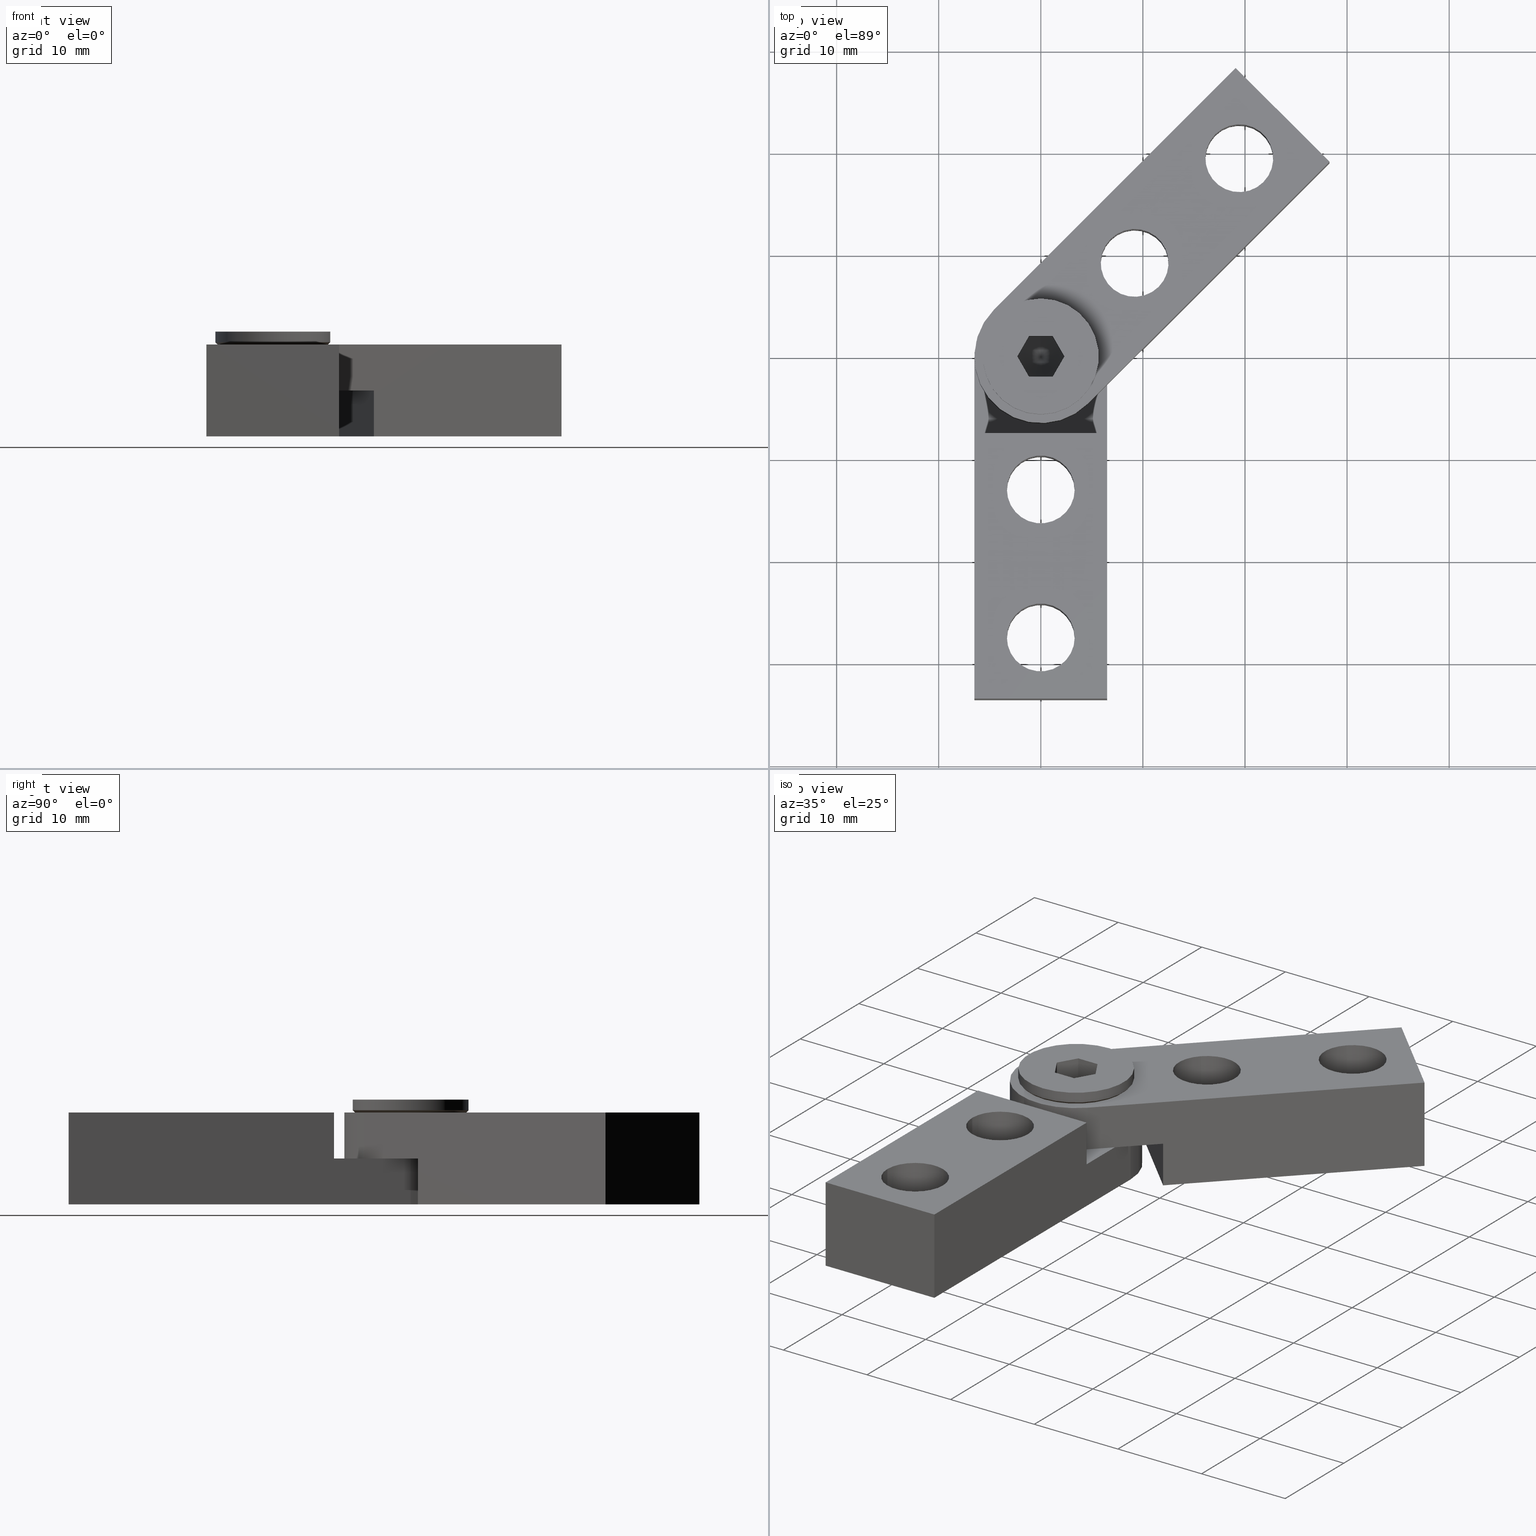
[diagram: canonical four-view strip — front | top / right | iso, engineering-drawing reading convention]
A machine part, canonical four-view strip (front | top / right | iso — engineering-drawing reading convention). The complete STEP part file that produces these views, byte-faithful:
ISO-10303-21;
HEADER;
/* Generated by software containing ST-Developer
 * from STEP Tools, Inc. (www.steptools.com) 
 */

FILE_DESCRIPTION(
/* description */ ('GIUNTO INTERNO SNOD. AD ANGOLO VARIABILE'),
/* implementation_level */ '2;1');

FILE_NAME(
/* name */ 
'Q:\\Catalogo\\2_Accessori Dierre\\Per Download Web e catalogo cartace
o\\CATALOGO ELEMENTI ASSEMBLAGGIO\\PAGINA 27\\CGIPR0000015.stp',
/* time_stamp */ '2019-03-11T14:41:33+01:00',
/* author */ ('fzagni'),
/* organization */ (''),
/* preprocessor_version */ 'ST-DEVELOPER v17.2',
/* originating_system */ 'Autodesk Inventor 2019',
/* authorisation */ '');

FILE_SCHEMA (('AUTOMOTIVE_DESIGN { 1 0 10303 214 3 1 1 }'));
ENDSEC;

DATA;
#10=MECHANICAL_DESIGN_GEOMETRIC_PRESENTATION_REPRESENTATION('',(#40,#41,
#42),#1304);
#11=ITEM_DEFINED_TRANSFORMATION($,$,#792,#864);
#12=ITEM_DEFINED_TRANSFORMATION($,$,#815,#865);
#13=ITEM_DEFINED_TRANSFORMATION($,$,#841,#866);
#14=(
REPRESENTATION_RELATIONSHIP($,$,#1321,#1320)
REPRESENTATION_RELATIONSHIP_WITH_TRANSFORMATION(#11)
SHAPE_REPRESENTATION_RELATIONSHIP()
);
#15=(
REPRESENTATION_RELATIONSHIP($,$,#1322,#1320)
REPRESENTATION_RELATIONSHIP_WITH_TRANSFORMATION(#12)
SHAPE_REPRESENTATION_RELATIONSHIP()
);
#16=(
REPRESENTATION_RELATIONSHIP($,$,#1323,#1320)
REPRESENTATION_RELATIONSHIP_WITH_TRANSFORMATION(#13)
SHAPE_REPRESENTATION_RELATIONSHIP()
);
#17=CONTEXT_DEPENDENT_SHAPE_REPRESENTATION(#14,#1317);
#18=CONTEXT_DEPENDENT_SHAPE_REPRESENTATION(#15,#1318);
#19=CONTEXT_DEPENDENT_SHAPE_REPRESENTATION(#16,#1319);
#20=NEXT_ASSEMBLY_USAGE_OCCURRENCE('440000011892:1','440000011892:1',
'440000011892:1',#1325,#1326,'440000011892:1');
#21=NEXT_ASSEMBLY_USAGE_OCCURRENCE('440000011893:2','440000011893:2',
'440000011893:2',#1325,#1327,'440000011893:2');
#22=NEXT_ASSEMBLY_USAGE_OCCURRENCE('ISO 10642 M6 x  10:1',
'ISO 10642 M6 x  10:1','ISO 10642 M6 x  10:1',#1325,#1328,
'ISO 10642 M6 x  10:1');
#23=(
BOUNDED_CURVE()
B_SPLINE_CURVE(2,(#1227,#1228,#1229),.UNSPECIFIED.,.F.,.F.)
B_SPLINE_CURVE_WITH_KNOTS((3,3),(0.,0.116843613807792),.UNSPECIFIED.)
CURVE()
GEOMETRIC_REPRESENTATION_ITEM()
RATIONAL_B_SPLINE_CURVE((1.,1.07735026918962,1.07735026918962))
REPRESENTATION_ITEM('')
);
#24=(
BOUNDED_CURVE()
B_SPLINE_CURVE(2,(#1236,#1237,#1238),.UNSPECIFIED.,.F.,.F.)
B_SPLINE_CURVE_WITH_KNOTS((3,3),(0.116843613807792,0.233687227615584),
 .UNSPECIFIED.)
CURVE()
GEOMETRIC_REPRESENTATION_ITEM()
RATIONAL_B_SPLINE_CURVE((1.07735026918962,1.07735026918962,1.))
REPRESENTATION_ITEM('')
);
#25=(
BOUNDED_CURVE()
B_SPLINE_CURVE(2,(#1241,#1242,#1243),.UNSPECIFIED.,.F.,.F.)
B_SPLINE_CURVE_WITH_KNOTS((3,3),(0.,0.233687227615584),.UNSPECIFIED.)
CURVE()
GEOMETRIC_REPRESENTATION_ITEM()
RATIONAL_B_SPLINE_CURVE((1.,1.15470053837925,1.))
REPRESENTATION_ITEM('')
);
#26=(
BOUNDED_CURVE()
B_SPLINE_CURVE(2,(#1249,#1250,#1251),.UNSPECIFIED.,.F.,.F.)
B_SPLINE_CURVE_WITH_KNOTS((3,3),(0.,0.233687227615584),.UNSPECIFIED.)
CURVE()
GEOMETRIC_REPRESENTATION_ITEM()
RATIONAL_B_SPLINE_CURVE((1.,1.15470053837925,1.))
REPRESENTATION_ITEM('')
);
#27=(
BOUNDED_CURVE()
B_SPLINE_CURVE(2,(#1257,#1258,#1259),.UNSPECIFIED.,.F.,.F.)
B_SPLINE_CURVE_WITH_KNOTS((3,3),(0.,0.233687227615584),.UNSPECIFIED.)
CURVE()
GEOMETRIC_REPRESENTATION_ITEM()
RATIONAL_B_SPLINE_CURVE((1.,1.15470053837925,1.))
REPRESENTATION_ITEM('')
);
#28=(
BOUNDED_CURVE()
B_SPLINE_CURVE(2,(#1265,#1266,#1267),.UNSPECIFIED.,.F.,.F.)
B_SPLINE_CURVE_WITH_KNOTS((3,3),(0.,0.233687227615584),.UNSPECIFIED.)
CURVE()
GEOMETRIC_REPRESENTATION_ITEM()
RATIONAL_B_SPLINE_CURVE((1.,1.15470053837925,1.))
REPRESENTATION_ITEM('')
);
#29=(
BOUNDED_CURVE()
B_SPLINE_CURVE(2,(#1272,#1273,#1274),.UNSPECIFIED.,.F.,.F.)
B_SPLINE_CURVE_WITH_KNOTS((3,3),(0.,0.233687227615584),.UNSPECIFIED.)
CURVE()
GEOMETRIC_REPRESENTATION_ITEM()
RATIONAL_B_SPLINE_CURVE((1.,1.15470053837925,1.))
REPRESENTATION_ITEM('')
);
#30=CONICAL_SURFACE('',#816,3.975,0.785398163397448);
#31=CONICAL_SURFACE('',#842,2.69327499999999,0.785398163397449);
#32=CONICAL_SURFACE('',#856,1.15470053837925,1.0471975511966);
#33=CONICAL_SURFACE('',#863,4.33500000000001,0.785398163397448);
#34=SHAPE_REPRESENTATION_RELATIONSHIP('SRR','None',#1321,#37);
#35=SHAPE_REPRESENTATION_RELATIONSHIP('SRR','None',#1322,#38);
#36=SHAPE_REPRESENTATION_RELATIONSHIP('SRR','None',#1323,#39);
#37=ADVANCED_BREP_SHAPE_REPRESENTATION('',(#43),#1301);
#38=ADVANCED_BREP_SHAPE_REPRESENTATION('',(#44),#1302);
#39=ADVANCED_BREP_SHAPE_REPRESENTATION('',(#45),#1303);
#40=STYLED_ITEM('',(#749),#43);
#41=STYLED_ITEM('',(#749),#44);
#42=STYLED_ITEM('',(#750),#45);
#43=MANIFOLD_SOLID_BREP('Solido1',#712);
#44=MANIFOLD_SOLID_BREP('Solido1',#713);
#45=MANIFOLD_SOLID_BREP('Solid1',#714);
#46=FACE_BOUND('',#120,.T.);
#47=FACE_BOUND('',#122,.T.);
#48=FACE_BOUND('',#123,.T.);
#49=FACE_BOUND('',#131,.T.);
#50=FACE_BOUND('',#132,.T.);
#51=FACE_BOUND('',#133,.T.);
#52=FACE_BOUND('',#138,.T.);
#53=FACE_BOUND('',#140,.T.);
#54=FACE_BOUND('',#141,.T.);
#55=FACE_BOUND('',#149,.T.);
#56=FACE_BOUND('',#150,.T.);
#57=FACE_BOUND('',#151,.T.);
#58=FACE_BOUND('',#163,.T.);
#59=PLANE('',#797);
#60=PLANE('',#798);
#61=PLANE('',#800);
#62=PLANE('',#805);
#63=PLANE('',#812);
#64=PLANE('',#813);
#65=PLANE('',#814);
#66=PLANE('',#823);
#67=PLANE('',#824);
#68=PLANE('',#826);
#69=PLANE('',#831);
#70=PLANE('',#838);
#71=PLANE('',#839);
#72=PLANE('',#840);
#73=PLANE('',#849);
#74=PLANE('',#850);
#75=PLANE('',#851);
#76=PLANE('',#852);
#77=PLANE('',#853);
#78=PLANE('',#854);
#79=PLANE('',#855);
#80=PLANE('',#857);
#81=FACE_OUTER_BOUND('',#117,.T.);
#82=FACE_OUTER_BOUND('',#118,.T.);
#83=FACE_OUTER_BOUND('',#119,.T.);
#84=FACE_OUTER_BOUND('',#121,.T.);
#85=FACE_OUTER_BOUND('',#124,.T.);
#86=FACE_OUTER_BOUND('',#125,.T.);
#87=FACE_OUTER_BOUND('',#126,.T.);
#88=FACE_OUTER_BOUND('',#127,.T.);
#89=FACE_OUTER_BOUND('',#128,.T.);
#90=FACE_OUTER_BOUND('',#129,.T.);
#91=FACE_OUTER_BOUND('',#130,.T.);
#92=FACE_OUTER_BOUND('',#134,.T.);
#93=FACE_OUTER_BOUND('',#135,.T.);
#94=FACE_OUTER_BOUND('',#136,.T.);
#95=FACE_OUTER_BOUND('',#137,.T.);
#96=FACE_OUTER_BOUND('',#139,.T.);
#97=FACE_OUTER_BOUND('',#142,.T.);
#98=FACE_OUTER_BOUND('',#143,.T.);
#99=FACE_OUTER_BOUND('',#144,.T.);
#100=FACE_OUTER_BOUND('',#145,.T.);
#101=FACE_OUTER_BOUND('',#146,.T.);
#102=FACE_OUTER_BOUND('',#147,.T.);
#103=FACE_OUTER_BOUND('',#148,.T.);
#104=FACE_OUTER_BOUND('',#152,.T.);
#105=FACE_OUTER_BOUND('',#153,.T.);
#106=FACE_OUTER_BOUND('',#154,.T.);
#107=FACE_OUTER_BOUND('',#155,.T.);
#108=FACE_OUTER_BOUND('',#156,.T.);
#109=FACE_OUTER_BOUND('',#157,.T.);
#110=FACE_OUTER_BOUND('',#158,.T.);
#111=FACE_OUTER_BOUND('',#159,.T.);
#112=FACE_OUTER_BOUND('',#160,.T.);
#113=FACE_OUTER_BOUND('',#161,.T.);
#114=FACE_OUTER_BOUND('',#162,.T.);
#115=FACE_OUTER_BOUND('',#164,.T.);
#116=FACE_OUTER_BOUND('',#165,.T.);
#117=EDGE_LOOP('',(#474,#475,#476,#477,#478));
#118=EDGE_LOOP('',(#479,#480,#481,#482));
#119=EDGE_LOOP('',(#483,#484,#485,#486));
#120=EDGE_LOOP('',(#487,#488));
#121=EDGE_LOOP('',(#489,#490,#491,#492));
#122=EDGE_LOOP('',(#493,#494));
#123=EDGE_LOOP('',(#495,#496));
#124=EDGE_LOOP('',(#497,#498,#499,#500,#501,#502));
#125=EDGE_LOOP('',(#503,#504,#505,#506,#507));
#126=EDGE_LOOP('',(#508,#509,#510,#511,#512));
#127=EDGE_LOOP('',(#513,#514,#515,#516));
#128=EDGE_LOOP('',(#517,#518,#519,#520,#521,#522));
#129=EDGE_LOOP('',(#523,#524,#525,#526));
#130=EDGE_LOOP('',(#527,#528,#529,#530));
#131=EDGE_LOOP('',(#531));
#132=EDGE_LOOP('',(#532));
#133=EDGE_LOOP('',(#533));
#134=EDGE_LOOP('',(#534,#535,#536,#537,#538,#539));
#135=EDGE_LOOP('',(#540,#541,#542,#543,#544));
#136=EDGE_LOOP('',(#545,#546,#547,#548));
#137=EDGE_LOOP('',(#549,#550,#551,#552));
#138=EDGE_LOOP('',(#553));
#139=EDGE_LOOP('',(#554,#555,#556,#557));
#140=EDGE_LOOP('',(#558,#559));
#141=EDGE_LOOP('',(#560,#561));
#142=EDGE_LOOP('',(#562,#563,#564,#565,#566,#567));
#143=EDGE_LOOP('',(#568,#569,#570,#571,#572));
#144=EDGE_LOOP('',(#573,#574,#575,#576,#577));
#145=EDGE_LOOP('',(#578,#579,#580,#581));
#146=EDGE_LOOP('',(#582,#583,#584,#585,#586,#587));
#147=EDGE_LOOP('',(#588,#589,#590,#591));
#148=EDGE_LOOP('',(#592,#593,#594,#595));
#149=EDGE_LOOP('',(#596,#597));
#150=EDGE_LOOP('',(#598));
#151=EDGE_LOOP('',(#599));
#152=EDGE_LOOP('',(#600,#601,#602,#603,#604));
#153=EDGE_LOOP('',(#605,#606,#607,#608,#609,#610));
#154=EDGE_LOOP('',(#611));
#155=EDGE_LOOP('',(#612,#613,#614,#615,#616));
#156=EDGE_LOOP('',(#617,#618,#619,#620));
#157=EDGE_LOOP('',(#621,#622,#623,#624));
#158=EDGE_LOOP('',(#625,#626,#627,#628));
#159=EDGE_LOOP('',(#629,#630,#631,#632));
#160=EDGE_LOOP('',(#633,#634,#635,#636));
#161=EDGE_LOOP('',(#637,#638,#639,#640,#641,#642,#643,#644,#645));
#162=EDGE_LOOP('',(#646,#647));
#163=EDGE_LOOP('',(#648,#649,#650,#651,#652,#653));
#164=EDGE_LOOP('',(#654,#655,#656,#657,#658,#659));
#165=EDGE_LOOP('',(#660,#661,#662,#663,#664,#665));
#166=LINE('',#1083,#222);
#167=LINE('',#1088,#223);
#168=LINE('',#1090,#224);
#169=LINE('',#1092,#225);
#170=LINE('',#1093,#226);
#171=LINE('',#1096,#227);
#172=LINE('',#1099,#228);
#173=LINE('',#1102,#229);
#174=LINE('',#1104,#230);
#175=LINE('',#1105,#231);
#176=LINE('',#1116,#232);
#177=LINE('',#1118,#233);
#178=LINE('',#1119,#234);
#179=LINE('',#1122,#235);
#180=LINE('',#1126,#236);
#181=LINE('',#1130,#237);
#182=LINE('',#1134,#238);
#183=LINE('',#1135,#239);
#184=LINE('',#1137,#240);
#185=LINE('',#1146,#241);
#186=LINE('',#1152,#242);
#187=LINE('',#1157,#243);
#188=LINE('',#1159,#244);
#189=LINE('',#1161,#245);
#190=LINE('',#1162,#246);
#191=LINE('',#1165,#247);
#192=LINE('',#1168,#248);
#193=LINE('',#1171,#249);
#194=LINE('',#1173,#250);
#195=LINE('',#1174,#251);
#196=LINE('',#1185,#252);
#197=LINE('',#1187,#253);
#198=LINE('',#1188,#254);
#199=LINE('',#1191,#255);
#200=LINE('',#1195,#256);
#201=LINE('',#1199,#257);
#202=LINE('',#1203,#258);
#203=LINE('',#1204,#259);
#204=LINE('',#1206,#260);
#205=LINE('',#1213,#261);
#206=LINE('',#1219,#262);
#207=LINE('',#1231,#263);
#208=LINE('',#1233,#264);
#209=LINE('',#1235,#265);
#210=LINE('',#1245,#266);
#211=LINE('',#1246,#267);
#212=LINE('',#1253,#268);
#213=LINE('',#1254,#269);
#214=LINE('',#1261,#270);
#215=LINE('',#1262,#271);
#216=LINE('',#1269,#272);
#217=LINE('',#1270,#273);
#218=LINE('',#1275,#274);
#219=LINE('',#1278,#275);
#220=LINE('',#1289,#276);
#221=LINE('',#1291,#277);
#222=VECTOR('',#877,2.4585);
#223=VECTOR('',#882,10.);
#224=VECTOR('',#883,10.);
#225=VECTOR('',#884,10.);
#226=VECTOR('',#885,10.);
#227=VECTOR('',#888,10.);
#228=VECTOR('',#891,10.);
#229=VECTOR('',#894,10.);
#230=VECTOR('',#895,10.);
#231=VECTOR('',#896,10.);
#232=VECTOR('',#907,10.);
#233=VECTOR('',#908,10.);
#234=VECTOR('',#909,10.);
#235=VECTOR('',#912,3.3235);
#236=VECTOR('',#917,3.3235);
#237=VECTOR('',#922,10.);
#238=VECTOR('',#927,10.);
#239=VECTOR('',#928,10.);
#240=VECTOR('',#931,10.);
#241=VECTOR('',#942,3.975);
#242=VECTOR('',#949,2.75);
#243=VECTOR('',#954,10.);
#244=VECTOR('',#955,10.);
#245=VECTOR('',#956,10.);
#246=VECTOR('',#957,10.);
#247=VECTOR('',#960,10.);
#248=VECTOR('',#963,10.);
#249=VECTOR('',#966,10.);
#250=VECTOR('',#967,10.);
#251=VECTOR('',#968,10.);
#252=VECTOR('',#979,10.);
#253=VECTOR('',#980,10.);
#254=VECTOR('',#981,10.);
#255=VECTOR('',#984,3.3235);
#256=VECTOR('',#989,3.3235);
#257=VECTOR('',#994,10.);
#258=VECTOR('',#999,10.);
#259=VECTOR('',#1000,10.);
#260=VECTOR('',#1003,10.);
#261=VECTOR('',#1012,2.69327499999999);
#262=VECTOR('',#1019,2.99999999999999);
#263=VECTOR('',#1028,10.);
#264=VECTOR('',#1029,10.);
#265=VECTOR('',#1030,10.);
#266=VECTOR('',#1033,10.);
#267=VECTOR('',#1034,10.);
#268=VECTOR('',#1037,10.);
#269=VECTOR('',#1038,10.);
#270=VECTOR('',#1041,10.);
#271=VECTOR('',#1042,10.);
#272=VECTOR('',#1045,10.);
#273=VECTOR('',#1046,10.);
#274=VECTOR('',#1049,10.);
#275=VECTOR('',#1052,1.15470053837925);
#276=VECTOR('',#1065,5.67000000000001);
#277=VECTOR('',#1068,4.33500000000001);
#278=CIRCLE('',#794,2.4585);
#279=CIRCLE('',#795,2.4585);
#280=CIRCLE('',#796,2.4585);
#281=CIRCLE('',#799,6.5);
#282=CIRCLE('',#801,3.3235);
#283=CIRCLE('',#802,3.3235);
#284=CIRCLE('',#803,3.3235);
#285=CIRCLE('',#804,3.3235);
#286=CIRCLE('',#807,3.3235);
#287=CIRCLE('',#809,3.3235);
#288=CIRCLE('',#811,6.5);
#289=CIRCLE('',#817,5.2);
#290=CIRCLE('',#818,5.2);
#291=CIRCLE('',#819,2.75);
#292=CIRCLE('',#820,2.75);
#293=CIRCLE('',#822,2.75);
#294=CIRCLE('',#825,6.5);
#295=CIRCLE('',#827,3.3235);
#296=CIRCLE('',#828,3.3235);
#297=CIRCLE('',#829,3.3235);
#298=CIRCLE('',#830,3.3235);
#299=CIRCLE('',#833,3.3235);
#300=CIRCLE('',#835,3.3235);
#301=CIRCLE('',#837,6.5);
#302=CIRCLE('',#843,2.38654999999999);
#303=CIRCLE('',#844,2.99999999999999);
#304=CIRCLE('',#845,2.99999999999999);
#305=CIRCLE('',#847,3.);
#306=CIRCLE('',#848,3.);
#307=CIRCLE('',#858,5.67000000000001);
#308=CIRCLE('',#859,5.67000000000001);
#309=CIRCLE('',#861,5.67000000000001);
#310=CIRCLE('',#862,5.67000000000001);
#311=VERTEX_POINT('',#1078);
#312=VERTEX_POINT('',#1079);
#313=VERTEX_POINT('',#1082);
#314=VERTEX_POINT('',#1086);
#315=VERTEX_POINT('',#1087);
#316=VERTEX_POINT('',#1089);
#317=VERTEX_POINT('',#1091);
#318=VERTEX_POINT('',#1095);
#319=VERTEX_POINT('',#1097);
#320=VERTEX_POINT('',#1101);
#321=VERTEX_POINT('',#1103);
#322=VERTEX_POINT('',#1106);
#323=VERTEX_POINT('',#1107);
#324=VERTEX_POINT('',#1110);
#325=VERTEX_POINT('',#1111);
#326=VERTEX_POINT('',#1115);
#327=VERTEX_POINT('',#1117);
#328=VERTEX_POINT('',#1121);
#329=VERTEX_POINT('',#1125);
#330=VERTEX_POINT('',#1129);
#331=VERTEX_POINT('',#1133);
#332=VERTEX_POINT('',#1141);
#333=VERTEX_POINT('',#1142);
#334=VERTEX_POINT('',#1145);
#335=VERTEX_POINT('',#1147);
#336=VERTEX_POINT('',#1151);
#337=VERTEX_POINT('',#1155);
#338=VERTEX_POINT('',#1156);
#339=VERTEX_POINT('',#1158);
#340=VERTEX_POINT('',#1160);
#341=VERTEX_POINT('',#1164);
#342=VERTEX_POINT('',#1166);
#343=VERTEX_POINT('',#1170);
#344=VERTEX_POINT('',#1172);
#345=VERTEX_POINT('',#1175);
#346=VERTEX_POINT('',#1176);
#347=VERTEX_POINT('',#1179);
#348=VERTEX_POINT('',#1180);
#349=VERTEX_POINT('',#1184);
#350=VERTEX_POINT('',#1186);
#351=VERTEX_POINT('',#1190);
#352=VERTEX_POINT('',#1194);
#353=VERTEX_POINT('',#1198);
#354=VERTEX_POINT('',#1202);
#355=VERTEX_POINT('',#1210);
#356=VERTEX_POINT('',#1212);
#357=VERTEX_POINT('',#1214);
#358=VERTEX_POINT('',#1218);
#359=VERTEX_POINT('',#1220);
#360=VERTEX_POINT('',#1225);
#361=VERTEX_POINT('',#1226);
#362=VERTEX_POINT('',#1230);
#363=VERTEX_POINT('',#1232);
#364=VERTEX_POINT('',#1234);
#365=VERTEX_POINT('',#1240);
#366=VERTEX_POINT('',#1244);
#367=VERTEX_POINT('',#1248);
#368=VERTEX_POINT('',#1252);
#369=VERTEX_POINT('',#1256);
#370=VERTEX_POINT('',#1260);
#371=VERTEX_POINT('',#1264);
#372=VERTEX_POINT('',#1268);
#373=VERTEX_POINT('',#1277);
#374=VERTEX_POINT('',#1280);
#375=VERTEX_POINT('',#1281);
#376=VERTEX_POINT('',#1285);
#377=VERTEX_POINT('',#1286);
#378=EDGE_CURVE('',#311,#312,#278,.T.);
#379=EDGE_CURVE('',#312,#311,#279,.T.);
#380=EDGE_CURVE('',#312,#313,#166,.T.);
#381=EDGE_CURVE('',#313,#313,#280,.T.);
#382=EDGE_CURVE('',#314,#315,#167,.T.);
#383=EDGE_CURVE('',#316,#314,#168,.T.);
#384=EDGE_CURVE('',#316,#317,#169,.T.);
#385=EDGE_CURVE('',#315,#317,#170,.T.);
#386=EDGE_CURVE('',#318,#316,#171,.T.);
#387=EDGE_CURVE('',#319,#318,#281,.T.);
#388=EDGE_CURVE('',#317,#319,#172,.T.);
#389=EDGE_CURVE('',#315,#320,#173,.T.);
#390=EDGE_CURVE('',#320,#321,#174,.T.);
#391=EDGE_CURVE('',#321,#314,#175,.T.);
#392=EDGE_CURVE('',#322,#323,#282,.T.);
#393=EDGE_CURVE('',#323,#322,#283,.T.);
#394=EDGE_CURVE('',#324,#325,#284,.T.);
#395=EDGE_CURVE('',#325,#324,#285,.T.);
#396=EDGE_CURVE('',#326,#319,#176,.T.);
#397=EDGE_CURVE('',#326,#327,#177,.T.);
#398=EDGE_CURVE('',#327,#320,#178,.T.);
#399=EDGE_CURVE('',#325,#328,#179,.T.);
#400=EDGE_CURVE('',#328,#328,#286,.T.);
#401=EDGE_CURVE('',#323,#329,#180,.T.);
#402=EDGE_CURVE('',#329,#329,#287,.T.);
#403=EDGE_CURVE('',#330,#318,#181,.T.);
#404=EDGE_CURVE('',#330,#326,#288,.T.);
#405=EDGE_CURVE('',#331,#321,#182,.T.);
#406=EDGE_CURVE('',#331,#330,#183,.T.);
#407=EDGE_CURVE('',#327,#331,#184,.T.);
#408=EDGE_CURVE('',#332,#333,#289,.T.);
#409=EDGE_CURVE('',#333,#332,#290,.T.);
#410=EDGE_CURVE('',#333,#334,#185,.T.);
#411=EDGE_CURVE('',#334,#335,#291,.T.);
#412=EDGE_CURVE('',#335,#334,#292,.T.);
#413=EDGE_CURVE('',#334,#336,#186,.T.);
#414=EDGE_CURVE('',#336,#336,#293,.T.);
#415=EDGE_CURVE('',#337,#338,#187,.T.);
#416=EDGE_CURVE('',#339,#337,#188,.T.);
#417=EDGE_CURVE('',#339,#340,#189,.T.);
#418=EDGE_CURVE('',#338,#340,#190,.T.);
#419=EDGE_CURVE('',#341,#339,#191,.T.);
#420=EDGE_CURVE('',#342,#341,#294,.T.);
#421=EDGE_CURVE('',#340,#342,#192,.T.);
#422=EDGE_CURVE('',#338,#343,#193,.T.);
#423=EDGE_CURVE('',#343,#344,#194,.T.);
#424=EDGE_CURVE('',#344,#337,#195,.T.);
#425=EDGE_CURVE('',#345,#346,#295,.T.);
#426=EDGE_CURVE('',#346,#345,#296,.T.);
#427=EDGE_CURVE('',#347,#348,#297,.T.);
#428=EDGE_CURVE('',#348,#347,#298,.T.);
#429=EDGE_CURVE('',#349,#342,#196,.T.);
#430=EDGE_CURVE('',#349,#350,#197,.T.);
#431=EDGE_CURVE('',#350,#343,#198,.T.);
#432=EDGE_CURVE('',#348,#351,#199,.T.);
#433=EDGE_CURVE('',#351,#351,#299,.T.);
#434=EDGE_CURVE('',#346,#352,#200,.T.);
#435=EDGE_CURVE('',#352,#352,#300,.T.);
#436=EDGE_CURVE('',#353,#341,#201,.T.);
#437=EDGE_CURVE('',#353,#349,#301,.T.);
#438=EDGE_CURVE('',#354,#344,#202,.T.);
#439=EDGE_CURVE('',#354,#353,#203,.T.);
#440=EDGE_CURVE('',#350,#354,#204,.T.);
#441=EDGE_CURVE('',#355,#355,#302,.T.);
#442=EDGE_CURVE('',#355,#356,#205,.T.);
#443=EDGE_CURVE('',#356,#357,#303,.T.);
#444=EDGE_CURVE('',#357,#356,#304,.T.);
#445=EDGE_CURVE('',#357,#358,#206,.T.);
#446=EDGE_CURVE('',#358,#359,#305,.T.);
#447=EDGE_CURVE('',#359,#358,#306,.T.);
#448=EDGE_CURVE('',#360,#361,#23,.T.);
#449=EDGE_CURVE('',#360,#362,#207,.T.);
#450=EDGE_CURVE('',#363,#362,#208,.T.);
#451=EDGE_CURVE('',#364,#363,#209,.T.);
#452=EDGE_CURVE('',#361,#364,#24,.T.);
#453=EDGE_CURVE('',#365,#360,#25,.T.);
#454=EDGE_CURVE('',#365,#366,#210,.T.);
#455=EDGE_CURVE('',#362,#366,#211,.T.);
#456=EDGE_CURVE('',#367,#365,#26,.T.);
#457=EDGE_CURVE('',#367,#368,#212,.T.);
#458=EDGE_CURVE('',#366,#368,#213,.T.);
#459=EDGE_CURVE('',#369,#367,#27,.T.);
#460=EDGE_CURVE('',#370,#369,#214,.T.);
#461=EDGE_CURVE('',#368,#370,#215,.T.);
#462=EDGE_CURVE('',#364,#371,#28,.T.);
#463=EDGE_CURVE('',#372,#363,#216,.T.);
#464=EDGE_CURVE('',#371,#372,#217,.T.);
#465=EDGE_CURVE('',#371,#369,#29,.T.);
#466=EDGE_CURVE('',#370,#372,#218,.T.);
#467=EDGE_CURVE('',#373,#361,#219,.T.);
#468=EDGE_CURVE('',#374,#375,#307,.T.);
#469=EDGE_CURVE('',#375,#374,#308,.T.);
#470=EDGE_CURVE('',#376,#377,#309,.T.);
#471=EDGE_CURVE('',#377,#376,#310,.T.);
#472=EDGE_CURVE('',#377,#375,#220,.T.);
#473=EDGE_CURVE('',#358,#377,#221,.T.);
#474=ORIENTED_EDGE('',*,*,#378,.F.);
#475=ORIENTED_EDGE('',*,*,#379,.F.);
#476=ORIENTED_EDGE('',*,*,#380,.T.);
#477=ORIENTED_EDGE('',*,*,#381,.F.);
#478=ORIENTED_EDGE('',*,*,#380,.F.);
#479=ORIENTED_EDGE('',*,*,#382,.F.);
#480=ORIENTED_EDGE('',*,*,#383,.F.);
#481=ORIENTED_EDGE('',*,*,#384,.T.);
#482=ORIENTED_EDGE('',*,*,#385,.F.);
#483=ORIENTED_EDGE('',*,*,#384,.F.);
#484=ORIENTED_EDGE('',*,*,#386,.F.);
#485=ORIENTED_EDGE('',*,*,#387,.F.);
#486=ORIENTED_EDGE('',*,*,#388,.F.);
#487=ORIENTED_EDGE('',*,*,#378,.T.);
#488=ORIENTED_EDGE('',*,*,#379,.T.);
#489=ORIENTED_EDGE('',*,*,#382,.T.);
#490=ORIENTED_EDGE('',*,*,#389,.T.);
#491=ORIENTED_EDGE('',*,*,#390,.T.);
#492=ORIENTED_EDGE('',*,*,#391,.T.);
#493=ORIENTED_EDGE('',*,*,#392,.T.);
#494=ORIENTED_EDGE('',*,*,#393,.T.);
#495=ORIENTED_EDGE('',*,*,#394,.T.);
#496=ORIENTED_EDGE('',*,*,#395,.T.);
#497=ORIENTED_EDGE('',*,*,#385,.T.);
#498=ORIENTED_EDGE('',*,*,#388,.T.);
#499=ORIENTED_EDGE('',*,*,#396,.F.);
#500=ORIENTED_EDGE('',*,*,#397,.T.);
#501=ORIENTED_EDGE('',*,*,#398,.T.);
#502=ORIENTED_EDGE('',*,*,#389,.F.);
#503=ORIENTED_EDGE('',*,*,#394,.F.);
#504=ORIENTED_EDGE('',*,*,#395,.F.);
#505=ORIENTED_EDGE('',*,*,#399,.T.);
#506=ORIENTED_EDGE('',*,*,#400,.F.);
#507=ORIENTED_EDGE('',*,*,#399,.F.);
#508=ORIENTED_EDGE('',*,*,#392,.F.);
#509=ORIENTED_EDGE('',*,*,#393,.F.);
#510=ORIENTED_EDGE('',*,*,#401,.T.);
#511=ORIENTED_EDGE('',*,*,#402,.F.);
#512=ORIENTED_EDGE('',*,*,#401,.F.);
#513=ORIENTED_EDGE('',*,*,#387,.T.);
#514=ORIENTED_EDGE('',*,*,#403,.F.);
#515=ORIENTED_EDGE('',*,*,#404,.T.);
#516=ORIENTED_EDGE('',*,*,#396,.T.);
#517=ORIENTED_EDGE('',*,*,#383,.T.);
#518=ORIENTED_EDGE('',*,*,#391,.F.);
#519=ORIENTED_EDGE('',*,*,#405,.F.);
#520=ORIENTED_EDGE('',*,*,#406,.T.);
#521=ORIENTED_EDGE('',*,*,#403,.T.);
#522=ORIENTED_EDGE('',*,*,#386,.T.);
#523=ORIENTED_EDGE('',*,*,#407,.T.);
#524=ORIENTED_EDGE('',*,*,#405,.T.);
#525=ORIENTED_EDGE('',*,*,#390,.F.);
#526=ORIENTED_EDGE('',*,*,#398,.F.);
#527=ORIENTED_EDGE('',*,*,#397,.F.);
#528=ORIENTED_EDGE('',*,*,#404,.F.);
#529=ORIENTED_EDGE('',*,*,#406,.F.);
#530=ORIENTED_EDGE('',*,*,#407,.F.);
#531=ORIENTED_EDGE('',*,*,#381,.T.);
#532=ORIENTED_EDGE('',*,*,#400,.T.);
#533=ORIENTED_EDGE('',*,*,#402,.T.);
#534=ORIENTED_EDGE('',*,*,#408,.F.);
#535=ORIENTED_EDGE('',*,*,#409,.F.);
#536=ORIENTED_EDGE('',*,*,#410,.T.);
#537=ORIENTED_EDGE('',*,*,#411,.T.);
#538=ORIENTED_EDGE('',*,*,#412,.T.);
#539=ORIENTED_EDGE('',*,*,#410,.F.);
#540=ORIENTED_EDGE('',*,*,#412,.F.);
#541=ORIENTED_EDGE('',*,*,#411,.F.);
#542=ORIENTED_EDGE('',*,*,#413,.T.);
#543=ORIENTED_EDGE('',*,*,#414,.F.);
#544=ORIENTED_EDGE('',*,*,#413,.F.);
#545=ORIENTED_EDGE('',*,*,#415,.F.);
#546=ORIENTED_EDGE('',*,*,#416,.F.);
#547=ORIENTED_EDGE('',*,*,#417,.T.);
#548=ORIENTED_EDGE('',*,*,#418,.F.);
#549=ORIENTED_EDGE('',*,*,#417,.F.);
#550=ORIENTED_EDGE('',*,*,#419,.F.);
#551=ORIENTED_EDGE('',*,*,#420,.F.);
#552=ORIENTED_EDGE('',*,*,#421,.F.);
#553=ORIENTED_EDGE('',*,*,#414,.T.);
#554=ORIENTED_EDGE('',*,*,#415,.T.);
#555=ORIENTED_EDGE('',*,*,#422,.T.);
#556=ORIENTED_EDGE('',*,*,#423,.T.);
#557=ORIENTED_EDGE('',*,*,#424,.T.);
#558=ORIENTED_EDGE('',*,*,#425,.T.);
#559=ORIENTED_EDGE('',*,*,#426,.T.);
#560=ORIENTED_EDGE('',*,*,#427,.T.);
#561=ORIENTED_EDGE('',*,*,#428,.T.);
#562=ORIENTED_EDGE('',*,*,#418,.T.);
#563=ORIENTED_EDGE('',*,*,#421,.T.);
#564=ORIENTED_EDGE('',*,*,#429,.F.);
#565=ORIENTED_EDGE('',*,*,#430,.T.);
#566=ORIENTED_EDGE('',*,*,#431,.T.);
#567=ORIENTED_EDGE('',*,*,#422,.F.);
#568=ORIENTED_EDGE('',*,*,#427,.F.);
#569=ORIENTED_EDGE('',*,*,#428,.F.);
#570=ORIENTED_EDGE('',*,*,#432,.T.);
#571=ORIENTED_EDGE('',*,*,#433,.F.);
#572=ORIENTED_EDGE('',*,*,#432,.F.);
#573=ORIENTED_EDGE('',*,*,#425,.F.);
#574=ORIENTED_EDGE('',*,*,#426,.F.);
#575=ORIENTED_EDGE('',*,*,#434,.T.);
#576=ORIENTED_EDGE('',*,*,#435,.F.);
#577=ORIENTED_EDGE('',*,*,#434,.F.);
#578=ORIENTED_EDGE('',*,*,#420,.T.);
#579=ORIENTED_EDGE('',*,*,#436,.F.);
#580=ORIENTED_EDGE('',*,*,#437,.T.);
#581=ORIENTED_EDGE('',*,*,#429,.T.);
#582=ORIENTED_EDGE('',*,*,#416,.T.);
#583=ORIENTED_EDGE('',*,*,#424,.F.);
#584=ORIENTED_EDGE('',*,*,#438,.F.);
#585=ORIENTED_EDGE('',*,*,#439,.T.);
#586=ORIENTED_EDGE('',*,*,#436,.T.);
#587=ORIENTED_EDGE('',*,*,#419,.T.);
#588=ORIENTED_EDGE('',*,*,#440,.T.);
#589=ORIENTED_EDGE('',*,*,#438,.T.);
#590=ORIENTED_EDGE('',*,*,#423,.F.);
#591=ORIENTED_EDGE('',*,*,#431,.F.);
#592=ORIENTED_EDGE('',*,*,#430,.F.);
#593=ORIENTED_EDGE('',*,*,#437,.F.);
#594=ORIENTED_EDGE('',*,*,#439,.F.);
#595=ORIENTED_EDGE('',*,*,#440,.F.);
#596=ORIENTED_EDGE('',*,*,#408,.T.);
#597=ORIENTED_EDGE('',*,*,#409,.T.);
#598=ORIENTED_EDGE('',*,*,#433,.T.);
#599=ORIENTED_EDGE('',*,*,#435,.T.);
#600=ORIENTED_EDGE('',*,*,#441,.T.);
#601=ORIENTED_EDGE('',*,*,#442,.T.);
#602=ORIENTED_EDGE('',*,*,#443,.T.);
#603=ORIENTED_EDGE('',*,*,#444,.T.);
#604=ORIENTED_EDGE('',*,*,#442,.F.);
#605=ORIENTED_EDGE('',*,*,#443,.F.);
#606=ORIENTED_EDGE('',*,*,#444,.F.);
#607=ORIENTED_EDGE('',*,*,#445,.T.);
#608=ORIENTED_EDGE('',*,*,#446,.T.);
#609=ORIENTED_EDGE('',*,*,#447,.T.);
#610=ORIENTED_EDGE('',*,*,#445,.F.);
#611=ORIENTED_EDGE('',*,*,#441,.F.);
#612=ORIENTED_EDGE('',*,*,#448,.F.);
#613=ORIENTED_EDGE('',*,*,#449,.T.);
#614=ORIENTED_EDGE('',*,*,#450,.F.);
#615=ORIENTED_EDGE('',*,*,#451,.F.);
#616=ORIENTED_EDGE('',*,*,#452,.F.);
#617=ORIENTED_EDGE('',*,*,#453,.F.);
#618=ORIENTED_EDGE('',*,*,#454,.T.);
#619=ORIENTED_EDGE('',*,*,#455,.F.);
#620=ORIENTED_EDGE('',*,*,#449,.F.);
#621=ORIENTED_EDGE('',*,*,#456,.F.);
#622=ORIENTED_EDGE('',*,*,#457,.T.);
#623=ORIENTED_EDGE('',*,*,#458,.F.);
#624=ORIENTED_EDGE('',*,*,#454,.F.);
#625=ORIENTED_EDGE('',*,*,#459,.F.);
#626=ORIENTED_EDGE('',*,*,#460,.F.);
#627=ORIENTED_EDGE('',*,*,#461,.F.);
#628=ORIENTED_EDGE('',*,*,#457,.F.);
#629=ORIENTED_EDGE('',*,*,#462,.F.);
#630=ORIENTED_EDGE('',*,*,#451,.T.);
#631=ORIENTED_EDGE('',*,*,#463,.F.);
#632=ORIENTED_EDGE('',*,*,#464,.F.);
#633=ORIENTED_EDGE('',*,*,#465,.F.);
#634=ORIENTED_EDGE('',*,*,#464,.T.);
#635=ORIENTED_EDGE('',*,*,#466,.F.);
#636=ORIENTED_EDGE('',*,*,#460,.T.);
#637=ORIENTED_EDGE('',*,*,#467,.T.);
#638=ORIENTED_EDGE('',*,*,#452,.T.);
#639=ORIENTED_EDGE('',*,*,#462,.T.);
#640=ORIENTED_EDGE('',*,*,#465,.T.);
#641=ORIENTED_EDGE('',*,*,#459,.T.);
#642=ORIENTED_EDGE('',*,*,#456,.T.);
#643=ORIENTED_EDGE('',*,*,#453,.T.);
#644=ORIENTED_EDGE('',*,*,#448,.T.);
#645=ORIENTED_EDGE('',*,*,#467,.F.);
#646=ORIENTED_EDGE('',*,*,#468,.F.);
#647=ORIENTED_EDGE('',*,*,#469,.F.);
#648=ORIENTED_EDGE('',*,*,#461,.T.);
#649=ORIENTED_EDGE('',*,*,#466,.T.);
#650=ORIENTED_EDGE('',*,*,#463,.T.);
#651=ORIENTED_EDGE('',*,*,#450,.T.);
#652=ORIENTED_EDGE('',*,*,#455,.T.);
#653=ORIENTED_EDGE('',*,*,#458,.T.);
#654=ORIENTED_EDGE('',*,*,#470,.F.);
#655=ORIENTED_EDGE('',*,*,#471,.F.);
#656=ORIENTED_EDGE('',*,*,#472,.T.);
#657=ORIENTED_EDGE('',*,*,#469,.T.);
#658=ORIENTED_EDGE('',*,*,#468,.T.);
#659=ORIENTED_EDGE('',*,*,#472,.F.);
#660=ORIENTED_EDGE('',*,*,#447,.F.);
#661=ORIENTED_EDGE('',*,*,#446,.F.);
#662=ORIENTED_EDGE('',*,*,#473,.T.);
#663=ORIENTED_EDGE('',*,*,#471,.T.);
#664=ORIENTED_EDGE('',*,*,#470,.T.);
#665=ORIENTED_EDGE('',*,*,#473,.F.);
#666=CYLINDRICAL_SURFACE('',#793,2.4585);
#667=CYLINDRICAL_SURFACE('',#806,3.3235);
#668=CYLINDRICAL_SURFACE('',#808,3.3235);
#669=CYLINDRICAL_SURFACE('',#810,6.5);
#670=CYLINDRICAL_SURFACE('',#821,2.75);
#671=CYLINDRICAL_SURFACE('',#832,3.3235);
#672=CYLINDRICAL_SURFACE('',#834,3.3235);
#673=CYLINDRICAL_SURFACE('',#836,6.5);
#674=CYLINDRICAL_SURFACE('',#846,2.99999999999999);
#675=CYLINDRICAL_SURFACE('',#860,5.67000000000001);
#676=ADVANCED_FACE('',(#81),#666,.F.);
#677=ADVANCED_FACE('',(#82),#59,.F.);
#678=ADVANCED_FACE('',(#83,#46),#60,.T.);
#679=ADVANCED_FACE('',(#84,#47,#48),#61,.T.);
#680=ADVANCED_FACE('',(#85),#62,.T.);
#681=ADVANCED_FACE('',(#86),#667,.F.);
#682=ADVANCED_FACE('',(#87),#668,.F.);
#683=ADVANCED_FACE('',(#88),#669,.T.);
#684=ADVANCED_FACE('',(#89),#63,.T.);
#685=ADVANCED_FACE('',(#90),#64,.T.);
#686=ADVANCED_FACE('',(#91,#49,#50,#51),#65,.F.);
#687=ADVANCED_FACE('',(#92),#30,.F.);
#688=ADVANCED_FACE('',(#93),#670,.F.);
#689=ADVANCED_FACE('',(#94),#66,.F.);
#690=ADVANCED_FACE('',(#95,#52),#67,.T.);
#691=ADVANCED_FACE('',(#96,#53,#54),#68,.T.);
#692=ADVANCED_FACE('',(#97),#69,.T.);
#693=ADVANCED_FACE('',(#98),#671,.F.);
#694=ADVANCED_FACE('',(#99),#672,.F.);
#695=ADVANCED_FACE('',(#100),#673,.T.);
#696=ADVANCED_FACE('',(#101),#70,.T.);
#697=ADVANCED_FACE('',(#102),#71,.T.);
#698=ADVANCED_FACE('',(#103,#55,#56,#57),#72,.F.);
#699=ADVANCED_FACE('',(#104),#31,.T.);
#700=ADVANCED_FACE('',(#105),#674,.T.);
#701=ADVANCED_FACE('',(#106),#73,.T.);
#702=ADVANCED_FACE('',(#107),#74,.F.);
#703=ADVANCED_FACE('',(#108),#75,.F.);
#704=ADVANCED_FACE('',(#109),#76,.F.);
#705=ADVANCED_FACE('',(#110),#77,.F.);
#706=ADVANCED_FACE('',(#111),#78,.F.);
#707=ADVANCED_FACE('',(#112),#79,.F.);
#708=ADVANCED_FACE('',(#113),#32,.F.);
#709=ADVANCED_FACE('',(#114,#58),#80,.T.);
#710=ADVANCED_FACE('',(#115),#675,.T.);
#711=ADVANCED_FACE('',(#116),#33,.T.);
#712=CLOSED_SHELL('',(#676,#677,#678,#679,#680,#681,#682,#683,#684,#685,
#686));
#713=CLOSED_SHELL('',(#687,#688,#689,#690,#691,#692,#693,#694,#695,#696,
#697,#698));
#714=CLOSED_SHELL('',(#699,#700,#701,#702,#703,#704,#705,#706,#707,#708,
#709,#710,#711));
#715=DERIVED_UNIT_ELEMENT(#721,1.);
#716=DERIVED_UNIT_ELEMENT(#1306,3.);
#717=DERIVED_UNIT_ELEMENT(#721,1.);
#718=DERIVED_UNIT_ELEMENT(#1306,3.);
#719=DERIVED_UNIT_ELEMENT(#721,1.);
#720=DERIVED_UNIT_ELEMENT(#1306,3.);
#721=(
MASS_UNIT()
NAMED_UNIT(*)
SI_UNIT($,.GRAM.)
);
#722=DERIVED_UNIT((#715,#716));
#723=DERIVED_UNIT((#717,#718));
#724=DERIVED_UNIT((#719,#720));
#725=MEASURE_REPRESENTATION_ITEM('density measure',
POSITIVE_RATIO_MEASURE(7.85),#722);
#726=MEASURE_REPRESENTATION_ITEM('density measure',
POSITIVE_RATIO_MEASURE(7.85),#723);
#727=MEASURE_REPRESENTATION_ITEM('density measure',
POSITIVE_RATIO_MEASURE(6.E-5),#724);
#728=PROPERTY_DEFINITION_REPRESENTATION(#743,#734);
#729=PROPERTY_DEFINITION_REPRESENTATION(#744,#735);
#730=PROPERTY_DEFINITION_REPRESENTATION(#745,#736);
#731=PROPERTY_DEFINITION_REPRESENTATION(#746,#737);
#732=PROPERTY_DEFINITION_REPRESENTATION(#747,#738);
#733=PROPERTY_DEFINITION_REPRESENTATION(#748,#739);
#734=REPRESENTATION('material name',(#740),#1301);
#735=REPRESENTATION('density',(#725),#1301);
#736=REPRESENTATION('material name',(#741),#1302);
#737=REPRESENTATION('density',(#726),#1302);
#738=REPRESENTATION('material name',(#742),#1303);
#739=REPRESENTATION('density',(#727),#1303);
#740=DESCRIPTIVE_REPRESENTATION_ITEM('Acciaio S235JR','Acciaio S235JR');
#741=DESCRIPTIVE_REPRESENTATION_ITEM('Acciaio S235JR','Acciaio S235JR');
#742=DESCRIPTIVE_REPRESENTATION_ITEM('Acciaio','Acciaio');
#743=PROPERTY_DEFINITION('material property','material name',#1326);
#744=PROPERTY_DEFINITION('material property','density of part',#1326);
#745=PROPERTY_DEFINITION('material property','material name',#1327);
#746=PROPERTY_DEFINITION('material property','density of part',#1327);
#747=PROPERTY_DEFINITION('material property','material name',#1328);
#748=PROPERTY_DEFINITION('material property','density of part',#1328);
#749=PRESENTATION_STYLE_ASSIGNMENT((#751));
#750=PRESENTATION_STYLE_ASSIGNMENT((#752));
#751=SURFACE_STYLE_USAGE(.BOTH.,#757);
#752=SURFACE_STYLE_USAGE(.BOTH.,#758);
#753=SURFACE_STYLE_RENDERING_WITH_PROPERTIES($,#765,(#755));
#754=SURFACE_STYLE_RENDERING_WITH_PROPERTIES($,#766,(#756));
#755=SURFACE_STYLE_TRANSPARENT(1.);
#756=SURFACE_STYLE_TRANSPARENT(1.);
#757=SURFACE_SIDE_STYLE('',(#759,#753));
#758=SURFACE_SIDE_STYLE('',(#760,#754));
#759=SURFACE_STYLE_FILL_AREA(#761);
#760=SURFACE_STYLE_FILL_AREA(#762);
#761=FILL_AREA_STYLE('',(#763));
#762=FILL_AREA_STYLE('',(#764));
#763=FILL_AREA_STYLE_COLOUR('',#765);
#764=FILL_AREA_STYLE_COLOUR('',#766);
#765=COLOUR_RGB('',0.83921568627451,0.886274509803922,0.854901960784314);
#766=COLOUR_RGB('',0.87843137254902,0.874509803921569,0.858823529411765);
#767=DATE_TIME_ROLE('creation_date');
#768=DATE_TIME_ROLE('creation_date');
#769=DATE_TIME_ROLE('creation_date');
#770=DATE_TIME_ROLE('creation_date');
#771=APPLIED_DATE_AND_TIME_ASSIGNMENT(#775,#767,(#1325));
#772=APPLIED_DATE_AND_TIME_ASSIGNMENT(#776,#768,(#1326));
#773=APPLIED_DATE_AND_TIME_ASSIGNMENT(#777,#769,(#1327));
#774=APPLIED_DATE_AND_TIME_ASSIGNMENT(#778,#770,(#1328));
#775=DATE_AND_TIME(#779,#783);
#776=DATE_AND_TIME(#780,#784);
#777=DATE_AND_TIME(#781,#785);
#778=DATE_AND_TIME(#782,#786);
#779=CALENDAR_DATE(2019,11,3);
#780=CALENDAR_DATE(2019,11,3);
#781=CALENDAR_DATE(2019,11,3);
#782=CALENDAR_DATE(2018,5,1);
#783=LOCAL_TIME(11,31,41.,#787);
#784=LOCAL_TIME(13,24,9.,#788);
#785=LOCAL_TIME(13,24,9.,#789);
#786=LOCAL_TIME(14,46,59.,#790);
#787=COORDINATED_UNIVERSAL_TIME_OFFSET(0,0,.BEHIND.);
#788=COORDINATED_UNIVERSAL_TIME_OFFSET(0,0,.BEHIND.);
#789=COORDINATED_UNIVERSAL_TIME_OFFSET(0,0,.BEHIND.);
#790=COORDINATED_UNIVERSAL_TIME_OFFSET(0,0,.BEHIND.);
#791=AXIS2_PLACEMENT_3D('placement',#1075,#867,#868);
#792=AXIS2_PLACEMENT_3D('placement',#1076,#869,#870);
#793=AXIS2_PLACEMENT_3D('',#1077,#871,#872);
#794=AXIS2_PLACEMENT_3D('',#1080,#873,#874);
#795=AXIS2_PLACEMENT_3D('',#1081,#875,#876);
#796=AXIS2_PLACEMENT_3D('',#1084,#878,#879);
#797=AXIS2_PLACEMENT_3D('',#1085,#880,#881);
#798=AXIS2_PLACEMENT_3D('',#1094,#886,#887);
#799=AXIS2_PLACEMENT_3D('',#1098,#889,#890);
#800=AXIS2_PLACEMENT_3D('',#1100,#892,#893);
#801=AXIS2_PLACEMENT_3D('',#1108,#897,#898);
#802=AXIS2_PLACEMENT_3D('',#1109,#899,#900);
#803=AXIS2_PLACEMENT_3D('',#1112,#901,#902);
#804=AXIS2_PLACEMENT_3D('',#1113,#903,#904);
#805=AXIS2_PLACEMENT_3D('',#1114,#905,#906);
#806=AXIS2_PLACEMENT_3D('',#1120,#910,#911);
#807=AXIS2_PLACEMENT_3D('',#1123,#913,#914);
#808=AXIS2_PLACEMENT_3D('',#1124,#915,#916);
#809=AXIS2_PLACEMENT_3D('',#1127,#918,#919);
#810=AXIS2_PLACEMENT_3D('',#1128,#920,#921);
#811=AXIS2_PLACEMENT_3D('',#1131,#923,#924);
#812=AXIS2_PLACEMENT_3D('',#1132,#925,#926);
#813=AXIS2_PLACEMENT_3D('',#1136,#929,#930);
#814=AXIS2_PLACEMENT_3D('',#1138,#932,#933);
#815=AXIS2_PLACEMENT_3D('placement',#1139,#934,#935);
#816=AXIS2_PLACEMENT_3D('',#1140,#936,#937);
#817=AXIS2_PLACEMENT_3D('',#1143,#938,#939);
#818=AXIS2_PLACEMENT_3D('',#1144,#940,#941);
#819=AXIS2_PLACEMENT_3D('',#1148,#943,#944);
#820=AXIS2_PLACEMENT_3D('',#1149,#945,#946);
#821=AXIS2_PLACEMENT_3D('',#1150,#947,#948);
#822=AXIS2_PLACEMENT_3D('',#1153,#950,#951);
#823=AXIS2_PLACEMENT_3D('',#1154,#952,#953);
#824=AXIS2_PLACEMENT_3D('',#1163,#958,#959);
#825=AXIS2_PLACEMENT_3D('',#1167,#961,#962);
#826=AXIS2_PLACEMENT_3D('',#1169,#964,#965);
#827=AXIS2_PLACEMENT_3D('',#1177,#969,#970);
#828=AXIS2_PLACEMENT_3D('',#1178,#971,#972);
#829=AXIS2_PLACEMENT_3D('',#1181,#973,#974);
#830=AXIS2_PLACEMENT_3D('',#1182,#975,#976);
#831=AXIS2_PLACEMENT_3D('',#1183,#977,#978);
#832=AXIS2_PLACEMENT_3D('',#1189,#982,#983);
#833=AXIS2_PLACEMENT_3D('',#1192,#985,#986);
#834=AXIS2_PLACEMENT_3D('',#1193,#987,#988);
#835=AXIS2_PLACEMENT_3D('',#1196,#990,#991);
#836=AXIS2_PLACEMENT_3D('',#1197,#992,#993);
#837=AXIS2_PLACEMENT_3D('',#1200,#995,#996);
#838=AXIS2_PLACEMENT_3D('',#1201,#997,#998);
#839=AXIS2_PLACEMENT_3D('',#1205,#1001,#1002);
#840=AXIS2_PLACEMENT_3D('',#1207,#1004,#1005);
#841=AXIS2_PLACEMENT_3D('placement',#1208,#1006,#1007);
#842=AXIS2_PLACEMENT_3D('',#1209,#1008,#1009);
#843=AXIS2_PLACEMENT_3D('',#1211,#1010,#1011);
#844=AXIS2_PLACEMENT_3D('',#1215,#1013,#1014);
#845=AXIS2_PLACEMENT_3D('',#1216,#1015,#1016);
#846=AXIS2_PLACEMENT_3D('',#1217,#1017,#1018);
#847=AXIS2_PLACEMENT_3D('',#1221,#1020,#1021);
#848=AXIS2_PLACEMENT_3D('',#1222,#1022,#1023);
#849=AXIS2_PLACEMENT_3D('',#1223,#1024,#1025);
#850=AXIS2_PLACEMENT_3D('',#1224,#1026,#1027);
#851=AXIS2_PLACEMENT_3D('',#1239,#1031,#1032);
#852=AXIS2_PLACEMENT_3D('',#1247,#1035,#1036);
#853=AXIS2_PLACEMENT_3D('',#1255,#1039,#1040);
#854=AXIS2_PLACEMENT_3D('',#1263,#1043,#1044);
#855=AXIS2_PLACEMENT_3D('',#1271,#1047,#1048);
#856=AXIS2_PLACEMENT_3D('',#1276,#1050,#1051);
#857=AXIS2_PLACEMENT_3D('',#1279,#1053,#1054);
#858=AXIS2_PLACEMENT_3D('',#1282,#1055,#1056);
#859=AXIS2_PLACEMENT_3D('',#1283,#1057,#1058);
#860=AXIS2_PLACEMENT_3D('',#1284,#1059,#1060);
#861=AXIS2_PLACEMENT_3D('',#1287,#1061,#1062);
#862=AXIS2_PLACEMENT_3D('',#1288,#1063,#1064);
#863=AXIS2_PLACEMENT_3D('',#1290,#1066,#1067);
#864=AXIS2_PLACEMENT_3D('',#1292,#1069,#1070);
#865=AXIS2_PLACEMENT_3D('',#1293,#1071,#1072);
#866=AXIS2_PLACEMENT_3D('',#1294,#1073,#1074);
#867=DIRECTION('axis',(0.,0.,1.));
#868=DIRECTION('refdir',(1.,0.,0.));
#869=DIRECTION('axis',(0.,0.,1.));
#870=DIRECTION('refdir',(1.,0.,0.));
#871=DIRECTION('center_axis',(0.,0.,1.));
#872=DIRECTION('ref_axis',(1.,0.,0.));
#873=DIRECTION('center_axis',(0.,0.,-1.));
#874=DIRECTION('ref_axis',(1.,0.,0.));
#875=DIRECTION('center_axis',(0.,0.,-1.));
#876=DIRECTION('ref_axis',(1.,0.,0.));
#877=DIRECTION('',(0.,0.,-1.));
#878=DIRECTION('center_axis',(0.,0.,1.));
#879=DIRECTION('ref_axis',(1.,0.,0.));
#880=DIRECTION('center_axis',(1.70803542250024E-16,-1.,0.));
#881=DIRECTION('ref_axis',(-1.,-1.70803542250024E-16,0.));
#882=DIRECTION('',(-1.,-1.70803542250024E-16,0.));
#883=DIRECTION('',(0.,0.,1.));
#884=DIRECTION('',(-1.,-1.70803542250024E-16,0.));
#885=DIRECTION('',(0.,0.,-1.));
#886=DIRECTION('center_axis',(0.,0.,1.));
#887=DIRECTION('ref_axis',(1.,0.,0.));
#888=DIRECTION('',(3.31409858097062E-17,-1.,0.));
#889=DIRECTION('center_axis',(0.,0.,-1.));
#890=DIRECTION('ref_axis',(1.,-2.1350442781253E-17,0.));
#891=DIRECTION('',(0.,1.,0.));
#892=DIRECTION('center_axis',(0.,0.,1.));
#893=DIRECTION('ref_axis',(1.,0.,0.));
#894=DIRECTION('',(0.,-1.,0.));
#895=DIRECTION('',(1.,0.,0.));
#896=DIRECTION('',(-3.31409858097062E-17,1.,0.));
#897=DIRECTION('center_axis',(0.,0.,-1.));
#898=DIRECTION('ref_axis',(1.,0.,0.));
#899=DIRECTION('center_axis',(0.,0.,-1.));
#900=DIRECTION('ref_axis',(1.,0.,0.));
#901=DIRECTION('center_axis',(0.,0.,-1.));
#902=DIRECTION('ref_axis',(1.,0.,0.));
#903=DIRECTION('center_axis',(0.,0.,-1.));
#904=DIRECTION('ref_axis',(1.,0.,0.));
#905=DIRECTION('center_axis',(-1.,0.,0.));
#906=DIRECTION('ref_axis',(0.,-1.,0.));
#907=DIRECTION('',(0.,0.,1.));
#908=DIRECTION('',(0.,-1.,0.));
#909=DIRECTION('',(0.,0.,1.));
#910=DIRECTION('center_axis',(0.,0.,1.));
#911=DIRECTION('ref_axis',(1.,0.,0.));
#912=DIRECTION('',(0.,0.,-1.));
#913=DIRECTION('center_axis',(0.,0.,1.));
#914=DIRECTION('ref_axis',(1.,0.,0.));
#915=DIRECTION('center_axis',(0.,0.,1.));
#916=DIRECTION('ref_axis',(1.,0.,0.));
#917=DIRECTION('',(0.,0.,-1.));
#918=DIRECTION('center_axis',(0.,0.,1.));
#919=DIRECTION('ref_axis',(1.,0.,0.));
#920=DIRECTION('center_axis',(0.,0.,1.));
#921=DIRECTION('ref_axis',(1.,-2.1350442781253E-17,0.));
#922=DIRECTION('',(0.,0.,1.));
#923=DIRECTION('center_axis',(0.,0.,1.));
#924=DIRECTION('ref_axis',(1.,-2.1350442781253E-17,0.));
#925=DIRECTION('center_axis',(1.,3.31409858097062E-17,0.));
#926=DIRECTION('ref_axis',(-3.31409858097062E-17,1.,0.));
#927=DIRECTION('',(0.,0.,1.));
#928=DIRECTION('',(-3.31409858097062E-17,1.,0.));
#929=DIRECTION('center_axis',(0.,-1.,0.));
#930=DIRECTION('ref_axis',(1.,0.,0.));
#931=DIRECTION('',(1.,0.,0.));
#932=DIRECTION('center_axis',(0.,0.,1.));
#933=DIRECTION('ref_axis',(1.,0.,0.));
#934=DIRECTION('axis',(0.,0.,1.));
#935=DIRECTION('refdir',(1.,0.,0.));
#936=DIRECTION('center_axis',(0.,0.,-1.));
#937=DIRECTION('ref_axis',(1.,0.,0.));
#938=DIRECTION('center_axis',(0.,0.,1.));
#939=DIRECTION('ref_axis',(1.,0.,0.));
#940=DIRECTION('center_axis',(0.,0.,1.));
#941=DIRECTION('ref_axis',(1.,0.,0.));
#942=DIRECTION('',(0.707106781186548,8.65956056235493E-17,0.707106781186548));
#943=DIRECTION('center_axis',(0.,0.,1.));
#944=DIRECTION('ref_axis',(1.,0.,0.));
#945=DIRECTION('center_axis',(0.,0.,1.));
#946=DIRECTION('ref_axis',(1.,0.,0.));
#947=DIRECTION('center_axis',(0.,0.,1.));
#948=DIRECTION('ref_axis',(1.,0.,0.));
#949=DIRECTION('',(0.,0.,1.));
#950=DIRECTION('center_axis',(0.,0.,-1.));
#951=DIRECTION('ref_axis',(1.,0.,0.));
#952=DIRECTION('center_axis',(1.70803542250024E-16,-1.,0.));
#953=DIRECTION('ref_axis',(-1.,-1.70803542250024E-16,0.));
#954=DIRECTION('',(-1.,-1.70803542250024E-16,0.));
#955=DIRECTION('',(0.,0.,1.));
#956=DIRECTION('',(-1.,-1.70803542250024E-16,0.));
#957=DIRECTION('',(0.,0.,-1.));
#958=DIRECTION('center_axis',(0.,0.,1.));
#959=DIRECTION('ref_axis',(1.,0.,0.));
#960=DIRECTION('',(3.31409858097062E-17,-1.,0.));
#961=DIRECTION('center_axis',(0.,0.,-1.));
#962=DIRECTION('ref_axis',(1.,-2.1350442781253E-17,0.));
#963=DIRECTION('',(0.,1.,0.));
#964=DIRECTION('center_axis',(0.,0.,1.));
#965=DIRECTION('ref_axis',(1.,0.,0.));
#966=DIRECTION('',(0.,-1.,0.));
#967=DIRECTION('',(1.,0.,0.));
#968=DIRECTION('',(-3.31409858097062E-17,1.,0.));
#969=DIRECTION('center_axis',(0.,0.,-1.));
#970=DIRECTION('ref_axis',(1.,0.,0.));
#971=DIRECTION('center_axis',(0.,0.,-1.));
#972=DIRECTION('ref_axis',(1.,0.,0.));
#973=DIRECTION('center_axis',(0.,0.,-1.));
#974=DIRECTION('ref_axis',(1.,0.,0.));
#975=DIRECTION('center_axis',(0.,0.,-1.));
#976=DIRECTION('ref_axis',(1.,0.,0.));
#977=DIRECTION('center_axis',(-1.,0.,0.));
#978=DIRECTION('ref_axis',(0.,-1.,0.));
#979=DIRECTION('',(0.,0.,1.));
#980=DIRECTION('',(0.,-1.,0.));
#981=DIRECTION('',(0.,0.,1.));
#982=DIRECTION('center_axis',(0.,0.,1.));
#983=DIRECTION('ref_axis',(1.,0.,0.));
#984=DIRECTION('',(0.,0.,-1.));
#985=DIRECTION('center_axis',(0.,0.,1.));
#986=DIRECTION('ref_axis',(1.,0.,0.));
#987=DIRECTION('center_axis',(0.,0.,1.));
#988=DIRECTION('ref_axis',(1.,0.,0.));
#989=DIRECTION('',(0.,0.,-1.));
#990=DIRECTION('center_axis',(0.,0.,1.));
#991=DIRECTION('ref_axis',(1.,0.,0.));
#992=DIRECTION('center_axis',(0.,0.,1.));
#993=DIRECTION('ref_axis',(1.,-2.1350442781253E-17,0.));
#994=DIRECTION('',(0.,0.,1.));
#995=DIRECTION('center_axis',(0.,0.,1.));
#996=DIRECTION('ref_axis',(1.,-2.1350442781253E-17,0.));
#997=DIRECTION('center_axis',(1.,3.31409858097062E-17,0.));
#998=DIRECTION('ref_axis',(-3.31409858097062E-17,1.,0.));
#999=DIRECTION('',(0.,0.,1.));
#1000=DIRECTION('',(-3.31409858097062E-17,1.,0.));
#1001=DIRECTION('center_axis',(0.,-1.,0.));
#1002=DIRECTION('ref_axis',(1.,0.,0.));
#1003=DIRECTION('',(1.,0.,0.));
#1004=DIRECTION('center_axis',(0.,0.,1.));
#1005=DIRECTION('ref_axis',(1.,0.,0.));
#1006=DIRECTION('axis',(0.,0.,1.));
#1007=DIRECTION('refdir',(1.,0.,0.));
#1008=DIRECTION('center_axis',(-1.,4.72825858056173E-21,0.));
#1009=DIRECTION('ref_axis',(-2.09488921766986E-21,-1.,0.));
#1010=DIRECTION('center_axis',(-1.,4.72825858056173E-21,0.));
#1011=DIRECTION('ref_axis',(-4.72825858056173E-21,-1.,0.));
#1012=DIRECTION('',(-0.707106781186547,0.707106781186548,8.65956056235494E-17));
#1013=DIRECTION('center_axis',(1.,-4.72825858056173E-21,0.));
#1014=DIRECTION('ref_axis',(0.,-1.,0.));
#1015=DIRECTION('center_axis',(1.,-4.72825858056173E-21,0.));
#1016=DIRECTION('ref_axis',(0.,-1.,0.));
#1017=DIRECTION('center_axis',(1.,-4.72825858056173E-21,0.));
#1018=DIRECTION('ref_axis',(0.,1.,0.));
#1019=DIRECTION('',(-1.,4.72825858056173E-21,0.));
#1020=DIRECTION('center_axis',(1.,-4.72825858056173E-21,0.));
#1021=DIRECTION('ref_axis',(0.,1.,0.));
#1022=DIRECTION('center_axis',(1.,-4.72825858056173E-21,0.));
#1023=DIRECTION('ref_axis',(0.,1.,0.));
#1024=DIRECTION('center_axis',(1.,-4.72825858056173E-21,0.));
#1025=DIRECTION('ref_axis',(0.,0.,-1.));
#1026=DIRECTION('center_axis',(-4.72825858056173E-21,-1.,2.40370335797945E-16));
#1027=DIRECTION('ref_axis',(0.,-2.40370335797945E-16,-1.));
#1028=DIRECTION('',(-1.,4.72825858056173E-21,0.));
#1029=DIRECTION('',(-1.51269129501227E-36,-2.40370335797945E-16,-1.));
#1030=DIRECTION('',(-1.,4.72825858056173E-21,0.));
#1031=DIRECTION('center_axis',(-2.36412929028086E-21,-0.5,-0.866025403784439));
#1032=DIRECTION('ref_axis',(-1.,0.,2.72986136428547E-21));
#1033=DIRECTION('',(-1.,4.72825858056173E-21,0.));
#1034=DIRECTION('',(4.09479204642821E-21,0.866025403784439,-0.5));
#1035=DIRECTION('center_axis',(2.36412929028086E-21,0.5,-0.866025403784439));
#1036=DIRECTION('ref_axis',(-1.,0.,-2.72986136428547E-21));
#1037=DIRECTION('',(-1.,4.72825858056173E-21,0.));
#1038=DIRECTION('',(4.09479204642821E-21,0.866025403784439,0.5));
#1039=DIRECTION('center_axis',(4.72825858056173E-21,1.,-3.60555503696918E-16));
#1040=DIRECTION('ref_axis',(0.,3.60555503696918E-16,1.));
#1041=DIRECTION('',(1.,-4.72825858056173E-21,0.));
#1042=DIRECTION('',(2.08095784638684E-36,3.60555503696918E-16,1.));
#1043=DIRECTION('center_axis',(-2.36412929028086E-21,-0.5,0.866025403784439));
#1044=DIRECTION('ref_axis',(1.,0.,2.72986136428547E-21));
#1045=DIRECTION('',(-4.09479204642821E-21,-0.866025403784439,-0.5));
#1046=DIRECTION('',(-1.,4.72825858056173E-21,0.));
#1047=DIRECTION('center_axis',(2.36412929028087E-21,0.500000000000001,0.866025403784438));
#1048=DIRECTION('ref_axis',(1.,0.,-2.72986136428547E-21));
#1049=DIRECTION('',(-4.0947920464282E-21,-0.866025403784438,0.5));
#1050=DIRECTION('center_axis',(-1.,4.72825858056173E-21,0.));
#1051=DIRECTION('ref_axis',(0.,1.,0.));
#1052=DIRECTION('',(-0.5,-0.866025403784438,-1.06057523872491E-16));
#1053=DIRECTION('center_axis',(-1.,4.72825858056173E-21,0.));
#1054=DIRECTION('ref_axis',(0.,0.,1.));
#1055=DIRECTION('center_axis',(1.,-4.72825858056173E-21,0.));
#1056=DIRECTION('ref_axis',(0.,1.,0.));
#1057=DIRECTION('center_axis',(1.,-4.72825858056173E-21,0.));
#1058=DIRECTION('ref_axis',(0.,1.,0.));
#1059=DIRECTION('center_axis',(1.,-4.72825858056173E-21,0.));
#1060=DIRECTION('ref_axis',(0.,1.,0.));
#1061=DIRECTION('center_axis',(1.,-4.72825858056173E-21,0.));
#1062=DIRECTION('ref_axis',(0.,1.,0.));
#1063=DIRECTION('center_axis',(1.,-4.72825858056173E-21,0.));
#1064=DIRECTION('ref_axis',(0.,1.,0.));
#1065=DIRECTION('',(-1.,4.72825858056173E-21,0.));
#1066=DIRECTION('center_axis',(-1.,4.72825858056173E-21,0.));
#1067=DIRECTION('ref_axis',(0.,1.,0.));
#1068=DIRECTION('',(-0.707106781186548,-0.707106781186547,-8.65956056235493E-17));
#1069=DIRECTION('',(0.,0.,1.));
#1070=DIRECTION('',(1.,0.,0.));
#1071=DIRECTION('',(0.,0.,-1.));
#1072=DIRECTION('',(0.707106781186548,-0.707106781186547,0.));
#1073=DIRECTION('',(-1.,0.,0.));
#1074=DIRECTION('',(0.,0.,-1.));
#1075=CARTESIAN_POINT('',(0.,0.,0.));
#1076=CARTESIAN_POINT('',(0.,0.,0.));
#1077=CARTESIAN_POINT('Origin',(0.,0.,-4.5));
#1078=CARTESIAN_POINT('',(2.4585,0.,4.5));
#1079=CARTESIAN_POINT('',(-2.4585,-3.01079415570377E-16,4.5));
#1080=CARTESIAN_POINT('Origin',(0.,0.,4.5));
#1081=CARTESIAN_POINT('Origin',(0.,0.,4.5));
#1082=CARTESIAN_POINT('',(-2.4585,-3.01079415570377E-16,0.));
#1083=CARTESIAN_POINT('',(-2.4585,-3.01079415570377E-16,-4.5));
#1084=CARTESIAN_POINT('Origin',(0.,0.,0.));
#1085=CARTESIAN_POINT('Origin',(6.5,-7.5,9.));
#1086=CARTESIAN_POINT('',(6.5,-7.5,9.));
#1087=CARTESIAN_POINT('',(-6.5,-7.5,9.));
#1088=CARTESIAN_POINT('',(3.25,-7.5,9.));
#1089=CARTESIAN_POINT('',(6.5,-7.5,4.5));
#1090=CARTESIAN_POINT('',(6.5,-7.5,4.5));
#1091=CARTESIAN_POINT('',(-6.5,-7.5,4.5));
#1092=CARTESIAN_POINT('',(-6.5,-7.5,4.5));
#1093=CARTESIAN_POINT('',(-6.5,-7.5,4.5));
#1094=CARTESIAN_POINT('Origin',(-9.61170714425868E-16,-2.08643479311518,
4.5));
#1095=CARTESIAN_POINT('',(6.5,0.,4.5));
#1096=CARTESIAN_POINT('',(6.5,-17.7932173965576,4.5));
#1097=CARTESIAN_POINT('',(-6.5,0.,4.5));
#1098=CARTESIAN_POINT('Origin',(-2.77555756156289E-16,1.38777878078145E-16,
4.5));
#1099=CARTESIAN_POINT('',(-6.5,-1.04321739655759,4.5));
#1100=CARTESIAN_POINT('Origin',(-6.74268059053723E-16,-15.6782283197694,
9.));
#1101=CARTESIAN_POINT('',(-6.5,-33.5,9.));
#1102=CARTESIAN_POINT('',(-6.5,0.,9.));
#1103=CARTESIAN_POINT('',(6.5,-33.5,9.));
#1104=CARTESIAN_POINT('',(-6.5,-33.5,9.));
#1105=CARTESIAN_POINT('',(6.5,-33.5,9.));
#1106=CARTESIAN_POINT('',(3.3235,-13.,9.));
#1107=CARTESIAN_POINT('',(-3.3235,-13.,9.));
#1108=CARTESIAN_POINT('Origin',(0.,-13.,9.));
#1109=CARTESIAN_POINT('Origin',(0.,-13.,9.));
#1110=CARTESIAN_POINT('',(3.3235,-27.5,9.));
#1111=CARTESIAN_POINT('',(-3.3235,-27.5,9.));
#1112=CARTESIAN_POINT('Origin',(0.,-27.5,9.));
#1113=CARTESIAN_POINT('Origin',(0.,-27.5,9.));
#1114=CARTESIAN_POINT('Origin',(-6.5,0.,0.));
#1115=CARTESIAN_POINT('',(-6.5,0.,0.));
#1116=CARTESIAN_POINT('',(-6.5,0.,0.));
#1117=CARTESIAN_POINT('',(-6.5,-33.5,0.));
#1118=CARTESIAN_POINT('',(-6.5,0.,0.));
#1119=CARTESIAN_POINT('',(-6.5,-33.5,0.));
#1120=CARTESIAN_POINT('Origin',(0.,-27.5,-1.));
#1121=CARTESIAN_POINT('',(-3.3235,-27.5,0.));
#1122=CARTESIAN_POINT('',(-3.3235,-27.5,-1.));
#1123=CARTESIAN_POINT('Origin',(0.,-27.5,0.));
#1124=CARTESIAN_POINT('Origin',(0.,-13.,-1.));
#1125=CARTESIAN_POINT('',(-3.3235,-13.,0.));
#1126=CARTESIAN_POINT('',(-3.3235,-13.,-1.));
#1127=CARTESIAN_POINT('Origin',(0.,-13.,0.));
#1128=CARTESIAN_POINT('Origin',(-2.77555756156289E-16,1.38777878078145E-16,
0.));
#1129=CARTESIAN_POINT('',(6.5,0.,0.));
#1130=CARTESIAN_POINT('',(6.5,0.,0.));
#1131=CARTESIAN_POINT('Origin',(-2.77555756156289E-16,1.38777878078145E-16,
0.));
#1132=CARTESIAN_POINT('Origin',(6.5,-33.5,0.));
#1133=CARTESIAN_POINT('',(6.5,-33.5,0.));
#1134=CARTESIAN_POINT('',(6.5,-33.5,0.));
#1135=CARTESIAN_POINT('',(6.5,-33.5,0.));
#1136=CARTESIAN_POINT('Origin',(-6.5,-33.5,0.));
#1137=CARTESIAN_POINT('',(-6.5,-33.5,0.));
#1138=CARTESIAN_POINT('Origin',(-6.74268059053723E-16,-15.6782283197694,
0.));
#1139=CARTESIAN_POINT('',(0.,0.,0.));
#1140=CARTESIAN_POINT('Origin',(0.,0.,1.225));
#1141=CARTESIAN_POINT('',(5.2,0.,0.));
#1142=CARTESIAN_POINT('',(-5.2,-6.36816335556624E-16,-1.38777878078145E-16));
#1143=CARTESIAN_POINT('Origin',(0.,0.,0.));
#1144=CARTESIAN_POINT('Origin',(0.,0.,0.));
#1145=CARTESIAN_POINT('',(-2.75,-3.36777869765522E-16,2.45));
#1146=CARTESIAN_POINT('',(-3.975,-4.86797102661073E-16,1.225));
#1147=CARTESIAN_POINT('',(2.75,0.,2.45));
#1148=CARTESIAN_POINT('Origin',(0.,0.,2.45));
#1149=CARTESIAN_POINT('Origin',(0.,0.,2.45));
#1150=CARTESIAN_POINT('Origin',(0.,0.,9.));
#1151=CARTESIAN_POINT('',(-2.75,3.36777869765522E-16,4.5));
#1152=CARTESIAN_POINT('',(-2.75,-3.36777869765522E-16,9.));
#1153=CARTESIAN_POINT('Origin',(0.,0.,4.5));
#1154=CARTESIAN_POINT('Origin',(6.5,-7.5,9.));
#1155=CARTESIAN_POINT('',(6.5,-7.5,9.));
#1156=CARTESIAN_POINT('',(-6.5,-7.5,9.));
#1157=CARTESIAN_POINT('',(3.25,-7.5,9.));
#1158=CARTESIAN_POINT('',(6.5,-7.5,4.5));
#1159=CARTESIAN_POINT('',(6.5,-7.5,4.5));
#1160=CARTESIAN_POINT('',(-6.5,-7.5,4.5));
#1161=CARTESIAN_POINT('',(-6.5,-7.5,4.5));
#1162=CARTESIAN_POINT('',(-6.5,-7.5,4.5));
#1163=CARTESIAN_POINT('Origin',(-9.61170714425868E-16,-2.08643479311518,
4.5));
#1164=CARTESIAN_POINT('',(6.5,0.,4.5));
#1165=CARTESIAN_POINT('',(6.5,-17.7932173965576,4.5));
#1166=CARTESIAN_POINT('',(-6.5,0.,4.5));
#1167=CARTESIAN_POINT('Origin',(-2.77555756156289E-16,1.38777878078145E-16,
4.5));
#1168=CARTESIAN_POINT('',(-6.5,-1.04321739655759,4.5));
#1169=CARTESIAN_POINT('Origin',(-6.74268059053723E-16,-15.6782283197694,
9.));
#1170=CARTESIAN_POINT('',(-6.5,-33.5,9.));
#1171=CARTESIAN_POINT('',(-6.5,0.,9.));
#1172=CARTESIAN_POINT('',(6.5,-33.5,9.));
#1173=CARTESIAN_POINT('',(-6.5,-33.5,9.));
#1174=CARTESIAN_POINT('',(6.5,-33.5,9.));
#1175=CARTESIAN_POINT('',(3.3235,-13.,9.));
#1176=CARTESIAN_POINT('',(-3.3235,-13.,9.));
#1177=CARTESIAN_POINT('Origin',(0.,-13.,9.));
#1178=CARTESIAN_POINT('Origin',(0.,-13.,9.));
#1179=CARTESIAN_POINT('',(3.3235,-27.5,9.));
#1180=CARTESIAN_POINT('',(-3.3235,-27.5,9.));
#1181=CARTESIAN_POINT('Origin',(0.,-27.5,9.));
#1182=CARTESIAN_POINT('Origin',(0.,-27.5,9.));
#1183=CARTESIAN_POINT('Origin',(-6.5,0.,0.));
#1184=CARTESIAN_POINT('',(-6.5,0.,0.));
#1185=CARTESIAN_POINT('',(-6.5,0.,0.));
#1186=CARTESIAN_POINT('',(-6.5,-33.5,0.));
#1187=CARTESIAN_POINT('',(-6.5,0.,0.));
#1188=CARTESIAN_POINT('',(-6.5,-33.5,0.));
#1189=CARTESIAN_POINT('Origin',(0.,-27.5,-1.));
#1190=CARTESIAN_POINT('',(-3.3235,-27.5,0.));
#1191=CARTESIAN_POINT('',(-3.3235,-27.5,-1.));
#1192=CARTESIAN_POINT('Origin',(0.,-27.5,0.));
#1193=CARTESIAN_POINT('Origin',(0.,-13.,-1.));
#1194=CARTESIAN_POINT('',(-3.3235,-13.,0.));
#1195=CARTESIAN_POINT('',(-3.3235,-13.,-1.));
#1196=CARTESIAN_POINT('Origin',(0.,-13.,0.));
#1197=CARTESIAN_POINT('Origin',(-2.77555756156289E-16,1.38777878078145E-16,
0.));
#1198=CARTESIAN_POINT('',(6.5,0.,0.));
#1199=CARTESIAN_POINT('',(6.5,0.,0.));
#1200=CARTESIAN_POINT('Origin',(-2.77555756156289E-16,1.38777878078145E-16,
0.));
#1201=CARTESIAN_POINT('Origin',(6.5,-33.5,0.));
#1202=CARTESIAN_POINT('',(6.5,-33.5,0.));
#1203=CARTESIAN_POINT('',(6.5,-33.5,0.));
#1204=CARTESIAN_POINT('',(6.5,-33.5,0.));
#1205=CARTESIAN_POINT('Origin',(-6.5,-33.5,0.));
#1206=CARTESIAN_POINT('',(-6.5,-33.5,0.));
#1207=CARTESIAN_POINT('Origin',(-6.74268059053723E-16,-15.6782283197694,
0.));
#1208=CARTESIAN_POINT('',(0.,0.,0.));
#1209=CARTESIAN_POINT('Origin',(9.693275,1.45027511282692E-21,0.));
#1210=CARTESIAN_POINT('',(10.,2.38654999999999,-2.92268081850511E-16));
#1211=CARTESIAN_POINT('Origin',(10.,-2.95870517508749E-31,0.));
#1212=CARTESIAN_POINT('',(9.38655,2.99999999999999,3.67394039744205E-16));
#1213=CARTESIAN_POINT('',(9.693275,2.69327499999999,3.29831060797358E-16));
#1214=CARTESIAN_POINT('',(9.38655,-2.99999999999999,-3.67394039744205E-16));
#1215=CARTESIAN_POINT('Origin',(9.38655,2.90055022594972E-21,0.));
#1216=CARTESIAN_POINT('Origin',(9.38655,2.90055022594972E-21,0.));
#1217=CARTESIAN_POINT('Origin',(8.5,7.09238787054672E-21,0.));
#1218=CARTESIAN_POINT('',(3.71999999999999,-2.99999999999999,-3.67394039744205E-16));
#1219=CARTESIAN_POINT('',(8.5,-2.99999999999999,-3.67394039744205E-16));
#1220=CARTESIAN_POINT('',(3.71999999999999,3.,0.));
#1221=CARTESIAN_POINT('Origin',(3.71999999999999,2.96934638856318E-20,0.));
#1222=CARTESIAN_POINT('Origin',(3.71999999999999,2.96934638856318E-20,0.));
#1223=CARTESIAN_POINT('Origin',(10.,1.5,0.));
#1224=CARTESIAN_POINT('Origin',(-2.83208529655869E-20,-2.,-1.15470053837925));
#1225=CARTESIAN_POINT('',(2.67,-2.,-1.15470053837925));
#1226=CARTESIAN_POINT('',(2.84863279495408,-2.,-2.5127875463765E-16));
#1227=CARTESIAN_POINT('Ctrl Pts',(2.67,-2.,-1.15470053837925));
#1228=CARTESIAN_POINT('Ctrl Pts',(2.84863279495408,-2.,-0.535898384862248));
#1229=CARTESIAN_POINT('Ctrl Pts',(2.84863279495408,-2.,-2.5762814944583E-16));
#1230=CARTESIAN_POINT('',(-2.83208529655869E-20,-2.,-1.15470053837925));
#1231=CARTESIAN_POINT('',(1.335,-2.,-1.15470053837925));
#1232=CARTESIAN_POINT('',(-2.83208529655869E-20,-2.,1.15470053837925));
#1233=CARTESIAN_POINT('',(-2.83208529655869E-20,-2.,-0.522104338030173));
#1234=CARTESIAN_POINT('',(2.67,-2.,1.15470053837925));
#1235=CARTESIAN_POINT('',(1.335,-2.,1.15470053837925));
#1236=CARTESIAN_POINT('Ctrl Pts',(2.84863279495408,-2.,-2.5762814944583E-16));
#1237=CARTESIAN_POINT('Ctrl Pts',(2.84863279495408,-2.,0.535898384862248));
#1238=CARTESIAN_POINT('Ctrl Pts',(2.67,-2.,1.15470053837925));
#1239=CARTESIAN_POINT('Origin',(-1.88643358044635E-20,-2.82763440626465E-16,
-2.3094010767585));
#1240=CARTESIAN_POINT('',(2.67,-1.52655665885959E-15,-2.3094010767585));
#1241=CARTESIAN_POINT('Ctrl Pts',(2.67,1.52652830506897E-15,-2.3094010767585));
#1242=CARTESIAN_POINT('Ctrl Pts',(3.00333333333334,-1.,-1.73205080756888));
#1243=CARTESIAN_POINT('Ctrl Pts',(2.67,-2.,-1.15470053837925));
#1244=CARTESIAN_POINT('',(-1.88643358044635E-20,-2.82763440626465E-16,-2.3094010767585));
#1245=CARTESIAN_POINT('',(1.335,-1.94289029309402E-15,-2.3094010767585));
#1246=CARTESIAN_POINT('',(-2.11456626084646E-20,-0.482487741550317,-2.03083664929373));
#1247=CARTESIAN_POINT('Origin',(-9.40781864334001E-21,2.,-1.15470053837925));
#1248=CARTESIAN_POINT('',(2.67,2.,-1.15470053837925));
#1249=CARTESIAN_POINT('Ctrl Pts',(2.67,2.,-1.15470053837925));
#1250=CARTESIAN_POINT('Ctrl Pts',(3.00333333333334,0.999999999999999,-1.73205080756888));
#1251=CARTESIAN_POINT('Ctrl Pts',(2.67,-2.91436379343166E-15,-2.3094010767585));
#1252=CARTESIAN_POINT('',(-9.40781864334001E-21,2.,-1.15470053837925));
#1253=CARTESIAN_POINT('',(1.335,2.,-1.15470053837925));
#1254=CARTESIAN_POINT('',(-1.14629248478319E-20,1.56535663828949,-1.4056420002643));
#1255=CARTESIAN_POINT('Origin',(-9.40781864334E-21,2.,1.15470053837925));
#1256=CARTESIAN_POINT('',(2.67,2.,1.15470053837925));
#1257=CARTESIAN_POINT('Ctrl Pts',(2.67,2.,1.15470053837925));
#1258=CARTESIAN_POINT('Ctrl Pts',(3.00333333333334,2.,-7.63278329429795E-16));
#1259=CARTESIAN_POINT('Ctrl Pts',(2.67,2.,-1.15470053837926));
#1260=CARTESIAN_POINT('',(-9.40781864334E-21,2.,1.15470053837925));
#1261=CARTESIAN_POINT('',(1.335,2.,1.15470053837925));
#1262=CARTESIAN_POINT('',(-9.40781864334001E-21,2.,0.632596200349077));
#1263=CARTESIAN_POINT('Origin',(-2.83208529655869E-20,-2.,1.15470053837925));
#1264=CARTESIAN_POINT('',(2.67,-1.38777878078145E-16,2.3094010767585));
#1265=CARTESIAN_POINT('Ctrl Pts',(2.67,-2.,1.15470053837925));
#1266=CARTESIAN_POINT('Ctrl Pts',(3.00333333333334,-1.,1.73205080756888));
#1267=CARTESIAN_POINT('Ctrl Pts',(2.67,1.24897254891268E-15,2.3094010767585));
#1268=CARTESIAN_POINT('',(-1.88643358044635E-20,0.,2.3094010767585));
#1269=CARTESIAN_POINT('',(-2.56477005895171E-20,-1.4346433617105,1.48110934568383));
#1270=CARTESIAN_POINT('',(1.335,4.16333634234434E-16,2.3094010767585));
#1271=CARTESIAN_POINT('Origin',(-1.88643358044635E-20,0.,2.3094010767585));
#1272=CARTESIAN_POINT('Ctrl Pts',(2.67,-1.11025137841578E-15,2.3094010767585));
#1273=CARTESIAN_POINT('Ctrl Pts',(3.00333333333334,1.,1.73205080756888));
#1274=CARTESIAN_POINT('Ctrl Pts',(2.67,2.,1.15470053837925));
#1275=CARTESIAN_POINT('',(-1.64174040279029E-20,0.517512258449684,2.01061523503365));
#1276=CARTESIAN_POINT('Origin',(3.33666666666667,3.15059630081804E-20,0.));
#1277=CARTESIAN_POINT('',(4.00333333333334,2.83537906211393E-20,0.));
#1278=CARTESIAN_POINT('',(3.33666666666667,-1.15470053837925,-1.41410031829988E-16));
#1279=CARTESIAN_POINT('Origin',(0.,3.98970053837926,0.));
#1280=CARTESIAN_POINT('',(0.,5.67000000000001,0.));
#1281=CARTESIAN_POINT('',(0.,-5.67000000000001,-6.94374735116551E-16));
#1282=CARTESIAN_POINT('Origin',(0.,4.72825858053214E-20,0.));
#1283=CARTESIAN_POINT('Origin',(0.,4.72825858053214E-20,0.));
#1284=CARTESIAN_POINT('Origin',(0.524999999999989,4.48002500505265E-20,
0.));
#1285=CARTESIAN_POINT('',(1.04999999999998,5.67000000000001,0.));
#1286=CARTESIAN_POINT('',(1.04999999999998,-5.67000000000001,-6.94374735116551E-16));
#1287=CARTESIAN_POINT('Origin',(1.04999999999998,4.23179142957317E-20,0.));
#1288=CARTESIAN_POINT('Origin',(1.04999999999998,4.23179142957317E-20,0.));
#1289=CARTESIAN_POINT('',(0.524999999999989,-5.67000000000001,-6.94374735116551E-16));
#1290=CARTESIAN_POINT('Origin',(2.38499999999998,3.60056890906818E-20,0.));
#1291=CARTESIAN_POINT('',(2.38499999999998,-4.33500000000001,-5.30884387430378E-16));
#1292=CARTESIAN_POINT('',(0.,0.,0.));
#1293=CARTESIAN_POINT('',(0.,0.,9.00000000000001));
#1294=CARTESIAN_POINT('',(0.,2.96937160391223E-20,10.27));
#1295=UNCERTAINTY_MEASURE_WITH_UNIT(LENGTH_MEASURE(0.01),#1305,
'DISTANCE_ACCURACY_VALUE',
'Maximum model space distance between geometric entities at asserted c
onnectivities');
#1296=UNCERTAINTY_MEASURE_WITH_UNIT(LENGTH_MEASURE(0.01),#1305,
'DISTANCE_ACCURACY_VALUE',
'Maximum model space distance between geometric entities at asserted c
onnectivities');
#1297=UNCERTAINTY_MEASURE_WITH_UNIT(LENGTH_MEASURE(0.01),#1305,
'DISTANCE_ACCURACY_VALUE',
'Maximum model space distance between geometric entities at asserted c
onnectivities');
#1298=UNCERTAINTY_MEASURE_WITH_UNIT(LENGTH_MEASURE(0.01),#1305,
'DISTANCE_ACCURACY_VALUE',
'Maximum model space distance between geometric entities at asserted c
onnectivities');
#1299=UNCERTAINTY_MEASURE_WITH_UNIT(LENGTH_MEASURE(0.01),#1305,
'DISTANCE_ACCURACY_VALUE',
'Maximum model space distance between geometric entities at asserted c
onnectivities');
#1300=(
GEOMETRIC_REPRESENTATION_CONTEXT(3)
GLOBAL_UNCERTAINTY_ASSIGNED_CONTEXT((#1295))
GLOBAL_UNIT_ASSIGNED_CONTEXT((#1305,#1307,#1308))
REPRESENTATION_CONTEXT('','3D')
);
#1301=(
GEOMETRIC_REPRESENTATION_CONTEXT(3)
GLOBAL_UNCERTAINTY_ASSIGNED_CONTEXT((#1296))
GLOBAL_UNIT_ASSIGNED_CONTEXT((#1305,#1307,#1308))
REPRESENTATION_CONTEXT('','3D')
);
#1302=(
GEOMETRIC_REPRESENTATION_CONTEXT(3)
GLOBAL_UNCERTAINTY_ASSIGNED_CONTEXT((#1297))
GLOBAL_UNIT_ASSIGNED_CONTEXT((#1305,#1307,#1308))
REPRESENTATION_CONTEXT('','3D')
);
#1303=(
GEOMETRIC_REPRESENTATION_CONTEXT(3)
GLOBAL_UNCERTAINTY_ASSIGNED_CONTEXT((#1298))
GLOBAL_UNIT_ASSIGNED_CONTEXT((#1305,#1307,#1308))
REPRESENTATION_CONTEXT('','3D')
);
#1304=(
GEOMETRIC_REPRESENTATION_CONTEXT(3)
GLOBAL_UNCERTAINTY_ASSIGNED_CONTEXT((#1299))
GLOBAL_UNIT_ASSIGNED_CONTEXT((#1305,#1307,#1308))
REPRESENTATION_CONTEXT('','3D')
);
#1305=(
LENGTH_UNIT()
NAMED_UNIT(*)
SI_UNIT(.MILLI.,.METRE.)
);
#1306=(
LENGTH_UNIT()
NAMED_UNIT(*)
SI_UNIT(.CENTI.,.METRE.)
);
#1307=(
NAMED_UNIT(*)
PLANE_ANGLE_UNIT()
SI_UNIT($,.RADIAN.)
);
#1308=(
NAMED_UNIT(*)
SI_UNIT($,.STERADIAN.)
SOLID_ANGLE_UNIT()
);
#1309=SHAPE_DEFINITION_REPRESENTATION(#1313,#1320);
#1310=SHAPE_DEFINITION_REPRESENTATION(#1314,#1321);
#1311=SHAPE_DEFINITION_REPRESENTATION(#1315,#1322);
#1312=SHAPE_DEFINITION_REPRESENTATION(#1316,#1323);
#1313=PRODUCT_DEFINITION_SHAPE('',$,#1325);
#1314=PRODUCT_DEFINITION_SHAPE('',$,#1326);
#1315=PRODUCT_DEFINITION_SHAPE('',$,#1327);
#1316=PRODUCT_DEFINITION_SHAPE('',$,#1328);
#1317=PRODUCT_DEFINITION_SHAPE($,$,#20);
#1318=PRODUCT_DEFINITION_SHAPE($,$,#21);
#1319=PRODUCT_DEFINITION_SHAPE($,$,#22);
#1320=SHAPE_REPRESENTATION('',(#791,#864,#865,#866),#1300);
#1321=SHAPE_REPRESENTATION('',(#792),#1301);
#1322=SHAPE_REPRESENTATION('',(#815),#1302);
#1323=SHAPE_REPRESENTATION('',(#841),#1303);
#1324=PRODUCT_DEFINITION_CONTEXT('part definition',#1338,'design');
#1325=PRODUCT_DEFINITION('CGIPR0000015','CGIPR0000015',#1329,#1324);
#1326=PRODUCT_DEFINITION('440000011892','440000011892',#1330,#1324);
#1327=PRODUCT_DEFINITION('440000011893','440000011893',#1331,#1324);
#1328=PRODUCT_DEFINITION('ISO 10642 - M6 x  10','ISO 10642 - M6 x  10',
#1332,#1324);
#1329=PRODUCT_DEFINITION_FORMATION('A',$,#1340);
#1330=PRODUCT_DEFINITION_FORMATION('',$,#1341);
#1331=PRODUCT_DEFINITION_FORMATION('',$,#1342);
#1332=PRODUCT_DEFINITION_FORMATION('',$,#1343);
#1333=PRODUCT_RELATED_PRODUCT_CATEGORY('CGIPR0000015','CGIPR0000015',(#1340));
#1334=PRODUCT_RELATED_PRODUCT_CATEGORY('440000011892','440000011892',(#1341));
#1335=PRODUCT_RELATED_PRODUCT_CATEGORY('440000011893','440000011893',(#1342));
#1336=PRODUCT_RELATED_PRODUCT_CATEGORY('ISO 10642 - M6 x  10',
'ISO 10642 - M6 x  10',(#1343));
#1337=APPLICATION_PROTOCOL_DEFINITION('international standard',
'automotive_design',2009,#1338);
#1338=APPLICATION_CONTEXT(
'Core Data for Automotive Mechanical Design Process');
#1339=PRODUCT_CONTEXT('part definition',#1338,'mechanical');
#1340=PRODUCT('CGIPR0000015','CGIPR0000015',
'GIUNTO INTERNO SNOD. AD ANGOLO VARIABILE',(#1339));
#1341=PRODUCT('440000011892','440000011892',$,(#1339));
#1342=PRODUCT('440000011893','440000011893',$,(#1339));
#1343=PRODUCT('ISO 10642 - M6 x  10','ISO 10642 - M6 x  10',
'Vite a testa svasata con impronta a croce ed esagono incassato 1 - Gr
ado prodotto A',(#1339));
ENDSEC;
END-ISO-10303-21;
